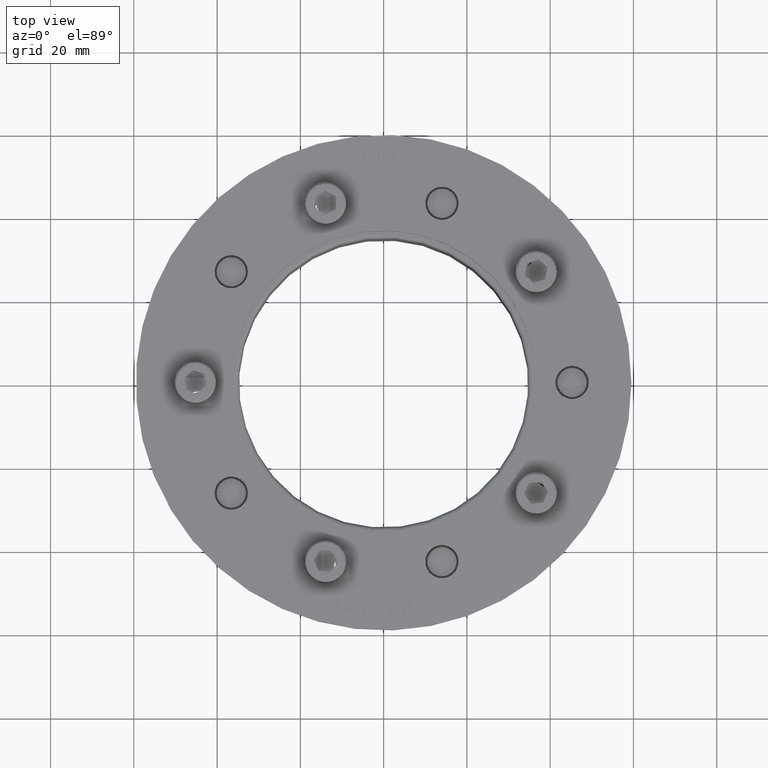
[diagram: clean part render]
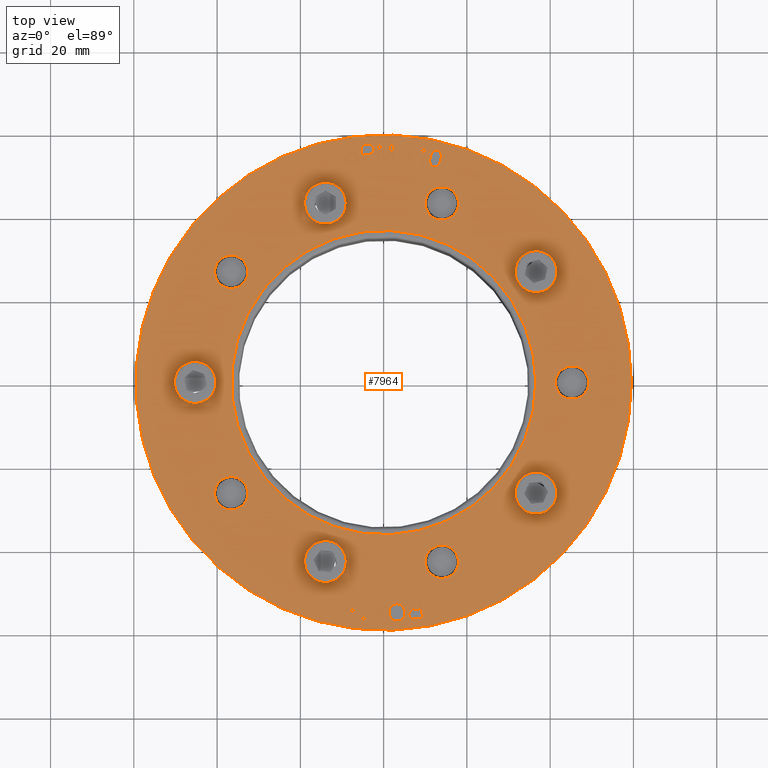
[diagram: same view with one face highlighted and labeled with its STEP entity id]
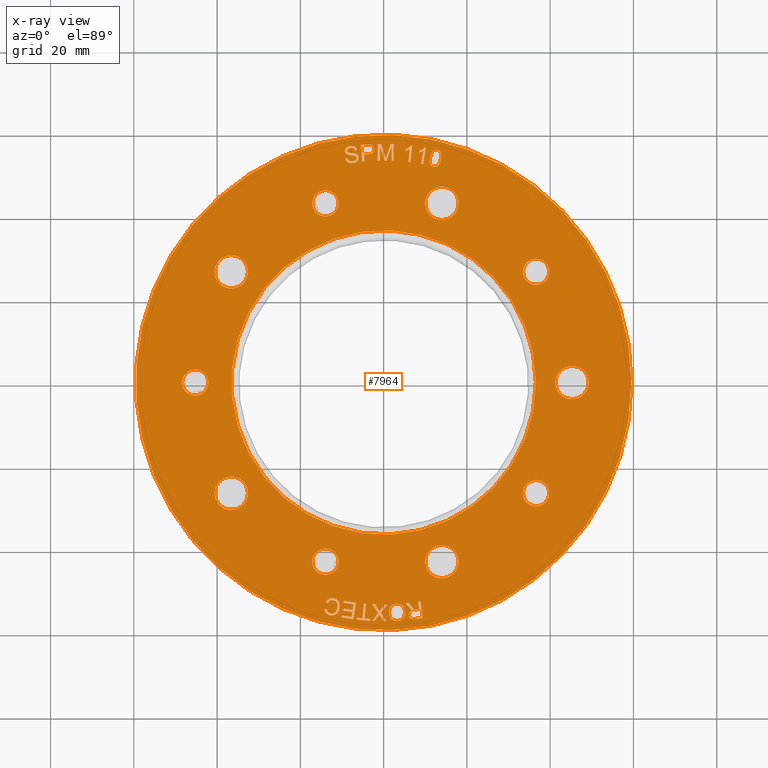
[diagram: x-ray of the same camera — body ghosted, the highlighted face saturated]
A machine part, top view. The second image highlights one B-rep face of the part: STEP entity #7964.
The next image is the same camera in x-ray: the body ghosted, the highlighted face saturated — about 0% of this face is hidden behind the body in this view.
In plain terms, the highlighted planar face has unit normal (-0, 0, 1).
Its self-contained STEP definition (entity closure, byte-faithful):
#121=FACE_BOUND('',#1734,.T.);
#122=FACE_BOUND('',#1735,.T.);
#123=FACE_BOUND('',#1736,.T.);
#124=FACE_BOUND('',#1737,.T.);
#125=FACE_BOUND('',#1738,.T.);
#126=FACE_BOUND('',#1739,.T.);
#127=FACE_BOUND('',#1740,.T.);
#128=FACE_BOUND('',#1741,.T.);
#129=FACE_BOUND('',#1742,.T.);
#130=FACE_BOUND('',#1743,.T.);
#131=FACE_BOUND('',#1744,.T.);
#132=FACE_BOUND('',#1745,.T.);
#133=FACE_BOUND('',#1746,.T.);
#134=FACE_BOUND('',#1747,.T.);
#135=FACE_BOUND('',#1748,.T.);
#136=FACE_BOUND('',#1749,.T.);
#137=FACE_BOUND('',#1750,.T.);
#138=FACE_BOUND('',#1751,.T.);
#139=FACE_BOUND('',#1752,.T.);
#140=FACE_BOUND('',#1753,.T.);
#141=FACE_BOUND('',#1754,.T.);
#142=FACE_BOUND('',#1755,.T.);
#143=FACE_BOUND('',#1756,.T.);
#448=CIRCLE('',#8577,59.5);
#449=CIRCLE('',#8578,4.);
#450=CIRCLE('',#8579,4.);
#451=CIRCLE('',#8580,4.);
#452=CIRCLE('',#8581,4.);
#453=CIRCLE('',#8582,4.);
#454=CIRCLE('',#8583,4.);
#455=CIRCLE('',#8584,4.);
#456=CIRCLE('',#8585,4.);
#457=CIRCLE('',#8586,4.);
#458=CIRCLE('',#8587,4.);
#459=CIRCLE('',#8588,3.15);
#460=CIRCLE('',#8589,3.15);
#461=CIRCLE('',#8590,3.15);
#462=CIRCLE('',#8591,3.15);
#463=CIRCLE('',#8592,3.15);
#464=CIRCLE('',#8593,3.15);
#465=CIRCLE('',#8594,3.15);
#466=CIRCLE('',#8595,3.15);
#467=CIRCLE('',#8596,3.15);
#468=CIRCLE('',#8597,3.15);
#469=CIRCLE('',#8598,36.55);
#629=B_SPLINE_CURVE_WITH_KNOTS('',2,(#12862,#12863,#12864),
 .UNSPECIFIED.,.F.,.F.,(3,3),(0.,1.),.UNSPECIFIED.);
#631=B_SPLINE_CURVE_WITH_KNOTS('',2,(#12877,#12878,#12879),
 .UNSPECIFIED.,.F.,.F.,(3,3),(0.,1.),.UNSPECIFIED.);
#633=B_SPLINE_CURVE_WITH_KNOTS('',2,(#12928,#12929,#12930),
 .UNSPECIFIED.,.F.,.F.,(3,3),(0.,1.),.UNSPECIFIED.);
#635=B_SPLINE_CURVE_WITH_KNOTS('',2,(#12943,#12944,#12945),
 .UNSPECIFIED.,.F.,.F.,(3,3),(0.,1.),.UNSPECIFIED.);
#645=B_SPLINE_CURVE_WITH_KNOTS('',2,(#13065,#13066,#13067,#13068,#13069),
 .UNSPECIFIED.,.F.,.F.,(3,1,1,3),(0.,1.,2.,3.),.UNSPECIFIED.);
#647=B_SPLINE_CURVE_WITH_KNOTS('',2,(#13090,#13091,#13092,#13093,#13094),
 .UNSPECIFIED.,.F.,.F.,(3,1,1,3),(0.,1.,2.,3.),.UNSPECIFIED.);
#649=B_SPLINE_CURVE_WITH_KNOTS('',2,(#13113,#13114,#13115,#13116,#13117),
 .UNSPECIFIED.,.F.,.F.,(3,1,1,3),(0.,1.,2.,3.),.UNSPECIFIED.);
#651=B_SPLINE_CURVE_WITH_KNOTS('',2,(#13133,#13134,#13135,#13136),
 .UNSPECIFIED.,.F.,.F.,(3,1,3),(0.,1.,2.),.UNSPECIFIED.);
#657=B_SPLINE_CURVE_WITH_KNOTS('',2,(#13230,#13231,#13232),
 .UNSPECIFIED.,.F.,.F.,(3,3),(0.,1.),.UNSPECIFIED.);
#659=B_SPLINE_CURVE_WITH_KNOTS('',2,(#13249,#13250,#13251,#13252,#13253),
 .UNSPECIFIED.,.F.,.F.,(3,1,1,3),(0.,1.,2.,3.),.UNSPECIFIED.);
#661=B_SPLINE_CURVE_WITH_KNOTS('',2,(#13286,#13287,#13288),
 .UNSPECIFIED.,.F.,.F.,(3,3),(0.,1.),.UNSPECIFIED.);
#663=B_SPLINE_CURVE_WITH_KNOTS('',2,(#13301,#13302,#13303),
 .UNSPECIFIED.,.F.,.F.,(3,3),(0.,1.),.UNSPECIFIED.);
#665=B_SPLINE_CURVE_WITH_KNOTS('',2,(#13318,#13319,#13320,#13321),
 .UNSPECIFIED.,.F.,.F.,(3,1,3),(0.,1.,2.),.UNSPECIFIED.);
#667=B_SPLINE_CURVE_WITH_KNOTS('',2,(#13339,#13340,#13341,#13342,#13343),
 .UNSPECIFIED.,.F.,.F.,(3,1,1,3),(0.,1.,2.,3.),.UNSPECIFIED.);
#679=B_SPLINE_CURVE_WITH_KNOTS('',2,(#13456,#13457,#13458),
 .UNSPECIFIED.,.F.,.F.,(3,3),(0.,1.),.UNSPECIFIED.);
#681=B_SPLINE_CURVE_WITH_KNOTS('',2,(#13473,#13474,#13475),
 .UNSPECIFIED.,.F.,.F.,(3,3),(0.,1.),.UNSPECIFIED.);
#683=B_SPLINE_CURVE_WITH_KNOTS('',2,(#13492,#13493,#13494,#13495,#13496),
 .UNSPECIFIED.,.F.,.F.,(3,1,1,3),(0.,1.,2.,3.),.UNSPECIFIED.);
#685=B_SPLINE_CURVE_WITH_KNOTS('',2,(#13517,#13518,#13519,#13520,#13521,
#13522),.UNSPECIFIED.,.F.,.F.,(3,1,1,1,3),(0.,1.,2.,3.,4.),
 .UNSPECIFIED.);
#687=B_SPLINE_CURVE_WITH_KNOTS('',2,(#13541,#13542,#13543,#13544,#13545),
 .UNSPECIFIED.,.F.,.F.,(3,1,1,3),(0.,1.,2.,3.),.UNSPECIFIED.);
#689=B_SPLINE_CURVE_WITH_KNOTS('',2,(#13576,#13577,#13578,#13579),
 .UNSPECIFIED.,.F.,.F.,(3,1,3),(0.,1.,2.),.UNSPECIFIED.);
#691=B_SPLINE_CURVE_WITH_KNOTS('',2,(#13601,#13602,#13603,#13604),
 .UNSPECIFIED.,.F.,.F.,(3,1,3),(0.,1.,2.),.UNSPECIFIED.);
#693=B_SPLINE_CURVE_WITH_KNOTS('',2,(#13633,#13634,#13635,#13636,#13637),
 .UNSPECIFIED.,.F.,.F.,(3,1,1,3),(0.,1.,2.,3.),.UNSPECIFIED.);
#695=B_SPLINE_CURVE_WITH_KNOTS('',2,(#13658,#13659,#13660,#13661,#13662),
 .UNSPECIFIED.,.F.,.F.,(3,1,1,3),(0.,1.,2.,3.),.UNSPECIFIED.);
#697=B_SPLINE_CURVE_WITH_KNOTS('',2,(#13679,#13680,#13681,#13682),
 .UNSPECIFIED.,.F.,.F.,(3,1,3),(0.,1.,2.),.UNSPECIFIED.);
#699=B_SPLINE_CURVE_WITH_KNOTS('',2,(#13698,#13699,#13700,#13701),
 .UNSPECIFIED.,.F.,.F.,(3,1,3),(0.,1.,2.),.UNSPECIFIED.);
#701=B_SPLINE_CURVE_WITH_KNOTS('',2,(#13715,#13716,#13717),
 .UNSPECIFIED.,.F.,.F.,(3,3),(0.,1.),.UNSPECIFIED.);
#703=B_SPLINE_CURVE_WITH_KNOTS('',2,(#13732,#13733,#13734,#13735),
 .UNSPECIFIED.,.F.,.F.,(3,1,3),(0.,1.,2.),.UNSPECIFIED.);
#705=B_SPLINE_CURVE_WITH_KNOTS('',2,(#13751,#13752,#13753,#13754),
 .UNSPECIFIED.,.F.,.F.,(3,1,3),(0.,1.,2.),.UNSPECIFIED.);
#707=B_SPLINE_CURVE_WITH_KNOTS('',2,(#13778,#13779,#13780,#13781,#13782),
 .UNSPECIFIED.,.F.,.F.,(3,1,1,3),(0.,1.,2.,3.),.UNSPECIFIED.);
#709=B_SPLINE_CURVE_WITH_KNOTS('',2,(#13801,#13802,#13803,#13804,#13805),
 .UNSPECIFIED.,.F.,.F.,(3,1,1,3),(0.,1.,2.,3.),.UNSPECIFIED.);
#711=B_SPLINE_CURVE_WITH_KNOTS('',2,(#13822,#13823,#13824,#13825),
 .UNSPECIFIED.,.F.,.F.,(3,1,3),(0.,1.,2.),.UNSPECIFIED.);
#713=B_SPLINE_CURVE_WITH_KNOTS('',2,(#13841,#13842,#13843,#13844),
 .UNSPECIFIED.,.F.,.F.,(3,1,3),(0.,1.,2.),.UNSPECIFIED.);
#715=B_SPLINE_CURVE_WITH_KNOTS('',2,(#13860,#13861,#13862,#13863),
 .UNSPECIFIED.,.F.,.F.,(3,1,3),(0.,1.,2.),.UNSPECIFIED.);
#717=B_SPLINE_CURVE_WITH_KNOTS('',2,(#13881,#13882,#13883,#13884,#13885),
 .UNSPECIFIED.,.F.,.F.,(3,1,1,3),(0.,1.,2.,3.),.UNSPECIFIED.);
#719=B_SPLINE_CURVE_WITH_KNOTS('',2,(#13904,#13905,#13906,#13907,#13908),
 .UNSPECIFIED.,.F.,.F.,(3,1,1,3),(0.,1.,2.,3.),.UNSPECIFIED.);
#727=B_SPLINE_CURVE_WITH_KNOTS('',2,(#14021,#14022,#14023,#14024),
 .UNSPECIFIED.,.F.,.F.,(3,1,3),(0.,1.,2.),.UNSPECIFIED.);
#729=B_SPLINE_CURVE_WITH_KNOTS('',2,(#14042,#14043,#14044,#14045,#14046),
 .UNSPECIFIED.,.F.,.F.,(3,1,1,3),(0.,1.,2.,3.),.UNSPECIFIED.);
#731=B_SPLINE_CURVE_WITH_KNOTS('',2,(#14061,#14062,#14063),
 .UNSPECIFIED.,.F.,.F.,(3,3),(0.,1.),.UNSPECIFIED.);
#733=B_SPLINE_CURVE_WITH_KNOTS('',2,(#14149,#14150,#14151),
 .UNSPECIFIED.,.F.,.F.,(3,3),(0.,1.),.UNSPECIFIED.);
#735=B_SPLINE_CURVE_WITH_KNOTS('',2,(#14164,#14165,#14166),
 .UNSPECIFIED.,.F.,.F.,(3,3),(0.,1.),.UNSPECIFIED.);
#737=B_SPLINE_CURVE_WITH_KNOTS('',2,(#14212,#14213,#14214,#14215),
 .UNSPECIFIED.,.F.,.F.,(3,1,3),(0.,1.,2.),.UNSPECIFIED.);
#739=B_SPLINE_CURVE_WITH_KNOTS('',2,(#14237,#14238,#14239,#14240),
 .UNSPECIFIED.,.F.,.F.,(3,1,3),(0.,1.,2.),.UNSPECIFIED.);
#741=B_SPLINE_CURVE_WITH_KNOTS('',2,(#14316,#14317,#14318,#14319),
 .UNSPECIFIED.,.F.,.F.,(3,1,3),(0.,1.,2.),.UNSPECIFIED.);
#743=B_SPLINE_CURVE_WITH_KNOTS('',2,(#14339,#14340,#14341,#14342,#14343),
 .UNSPECIFIED.,.F.,.F.,(3,1,1,3),(0.,1.,2.,3.),.UNSPECIFIED.);
#745=B_SPLINE_CURVE_WITH_KNOTS('',2,(#14362,#14363,#14364,#14365,#14366),
 .UNSPECIFIED.,.F.,.F.,(3,1,1,3),(0.,1.,2.,3.),.UNSPECIFIED.);
#747=B_SPLINE_CURVE_WITH_KNOTS('',2,(#14383,#14384,#14385,#14386),
 .UNSPECIFIED.,.F.,.F.,(3,1,3),(0.,1.,2.),.UNSPECIFIED.);
#749=B_SPLINE_CURVE_WITH_KNOTS('',2,(#14408,#14409,#14410,#14411),
 .UNSPECIFIED.,.F.,.F.,(3,1,3),(0.,1.,2.),.UNSPECIFIED.);
#751=B_SPLINE_CURVE_WITH_KNOTS('',2,(#14429,#14430,#14431,#14432,#14433),
 .UNSPECIFIED.,.F.,.F.,(3,1,1,3),(0.,1.,2.,3.),.UNSPECIFIED.);
#753=B_SPLINE_CURVE_WITH_KNOTS('',2,(#14452,#14453,#14454,#14455,#14456),
 .UNSPECIFIED.,.F.,.F.,(3,1,1,3),(0.,1.,2.,3.),.UNSPECIFIED.);
#755=B_SPLINE_CURVE_WITH_KNOTS('',2,(#14473,#14474,#14475,#14476),
 .UNSPECIFIED.,.F.,.F.,(3,1,3),(0.,1.,2.),.UNSPECIFIED.);
#1265=FACE_OUTER_BOUND('',#1733,.T.);
#1733=EDGE_LOOP('',(#7062));
#1734=EDGE_LOOP('',(#7063,#7064,#7065,#7066,#7067,#7068,#7069,#7070,#7071,
#7072,#7073,#7074));
#1735=EDGE_LOOP('',(#7075,#7076,#7077,#7078,#7079,#7080,#7081,#7082,#7083,
#7084,#7085,#7086,#7087,#7088,#7089,#7090));
#1736=EDGE_LOOP('',(#7091,#7092,#7093,#7094));
#1737=EDGE_LOOP('',(#7095,#7096,#7097,#7098,#7099,#7100,#7101,#7102,#7103,
#7104,#7105,#7106,#7107,#7108));
#1738=EDGE_LOOP('',(#7109,#7110,#7111,#7112,#7113));
#1739=EDGE_LOOP('',(#7114,#7115,#7116,#7117,#7118,#7119,#7120));
#1740=EDGE_LOOP('',(#7121,#7122,#7123,#7124,#7125,#7126,#7127,#7128,#7129,
#7130,#7131,#7132,#7133,#7134,#7135,#7136));
#1741=EDGE_LOOP('',(#7137,#7138,#7139,#7140,#7141,#7142,#7143,#7144));
#1742=EDGE_LOOP('',(#7145,#7146,#7147,#7148,#7149,#7150,#7151,#7152,#7153,
#7154,#7155,#7156,#7157,#7158,#7159));
#1743=EDGE_LOOP('',(#7160,#7161,#7162,#7163,#7164,#7165,#7166));
#1744=EDGE_LOOP('',(#7167,#7168,#7169,#7170,#7171,#7172,#7173,#7174));
#1745=EDGE_LOOP('',(#7175,#7176,#7177,#7178,#7179,#7180,#7181,#7182,#7183,
#7184));
#1746=EDGE_LOOP('',(#7185,#7186));
#1747=EDGE_LOOP('',(#7187,#7188));
#1748=EDGE_LOOP('',(#7189,#7190));
#1749=EDGE_LOOP('',(#7191,#7192));
#1750=EDGE_LOOP('',(#7193,#7194));
#1751=EDGE_LOOP('',(#7195,#7196));
#1752=EDGE_LOOP('',(#7197,#7198));
#1753=EDGE_LOOP('',(#7199,#7200));
#1754=EDGE_LOOP('',(#7201,#7202));
#1755=EDGE_LOOP('',(#7203,#7204));
#1756=EDGE_LOOP('',(#7205));
#2121=LINE('',#12770,#2766);
#2125=LINE('',#12778,#2770);
#2128=LINE('',#12784,#2773);
#2131=LINE('',#12790,#2776);
#2134=LINE('',#12796,#2779);
#2137=LINE('',#12802,#2782);
#2140=LINE('',#12808,#2785);
#2143=LINE('',#12814,#2788);
#2146=LINE('',#12820,#2791);
#2149=LINE('',#12826,#2794);
#2152=LINE('',#12832,#2797);
#2155=LINE('',#12837,#2800);
#2157=LINE('',#12843,#2802);
#2161=LINE('',#12851,#2806);
#2166=LINE('',#12887,#2811);
#2169=LINE('',#12893,#2814);
#2172=LINE('',#12899,#2817);
#2175=LINE('',#12905,#2820);
#2178=LINE('',#12911,#2823);
#2181=LINE('',#12917,#2826);
#2186=LINE('',#12953,#2831);
#2189=LINE('',#12959,#2834);
#2192=LINE('',#12965,#2837);
#2195=LINE('',#12970,#2840);
#2216=LINE('',#13205,#2861);
#2220=LINE('',#13213,#2865);
#2223=LINE('',#13219,#2868);
#2228=LINE('',#13263,#2873);
#2231=LINE('',#13269,#2876);
#2234=LINE('',#13275,#2879);
#2241=LINE('',#13353,#2886);
#2244=LINE('',#13358,#2889);
#2256=LINE('',#13555,#2901);
#2260=LINE('',#13563,#2905);
#2264=LINE('',#13588,#2909);
#2268=LINE('',#13613,#2913);
#2271=LINE('',#13618,#2916);
#2281=LINE('',#13763,#2926);
#2291=LINE('',#13917,#2936);
#2305=LINE('',#13994,#2950);
#2309=LINE('',#14002,#2954);
#2312=LINE('',#14008,#2957);
#2318=LINE('',#14071,#2963);
#2321=LINE('',#14076,#2966);
#2323=LINE('',#14082,#2968);
#2327=LINE('',#14090,#2972);
#2330=LINE('',#14096,#2975);
#2333=LINE('',#14102,#2978);
#2336=LINE('',#14108,#2981);
#2339=LINE('',#14114,#2984);
#2342=LINE('',#14120,#2987);
#2345=LINE('',#14126,#2990);
#2348=LINE('',#14132,#2993);
#2351=LINE('',#14138,#2996);
#2356=LINE('',#14174,#3001);
#2359=LINE('',#14180,#3004);
#2362=LINE('',#14185,#3007);
#2364=LINE('',#14191,#3009);
#2368=LINE('',#14199,#3013);
#2372=LINE('',#14224,#3017);
#2376=LINE('',#14249,#3021);
#2379=LINE('',#14254,#3024);
#2381=LINE('',#14260,#3026);
#2385=LINE('',#14268,#3030);
#2388=LINE('',#14274,#3033);
#2391=LINE('',#14280,#3036);
#2394=LINE('',#14286,#3039);
#2397=LINE('',#14292,#3042);
#2400=LINE('',#14298,#3045);
#2403=LINE('',#14303,#3048);
#2410=LINE('',#14395,#3055);
#2417=LINE('',#14484,#3062);
#2766=VECTOR('',#9745,10.);
#2770=VECTOR('',#9751,10.);
#2773=VECTOR('',#9756,10.);
#2776=VECTOR('',#9761,10.);
#2779=VECTOR('',#9766,10.);
#2782=VECTOR('',#9771,10.);
#2785=VECTOR('',#9776,10.);
#2788=VECTOR('',#9781,10.);
#2791=VECTOR('',#9786,10.);
#2794=VECTOR('',#9791,10.);
#2797=VECTOR('',#9796,10.);
#2800=VECTOR('',#9801,10.);
#2802=VECTOR('',#9807,10.);
#2806=VECTOR('',#9813,10.);
#2811=VECTOR('',#9820,10.);
#2814=VECTOR('',#9825,10.);
#2817=VECTOR('',#9830,10.);
#2820=VECTOR('',#9835,10.);
#2823=VECTOR('',#9840,10.);
#2826=VECTOR('',#9845,10.);
#2831=VECTOR('',#9852,10.);
#2834=VECTOR('',#9857,10.);
#2837=VECTOR('',#9862,10.);
#2840=VECTOR('',#9867,10.);
#2861=VECTOR('',#9900,10.);
#2865=VECTOR('',#9906,10.);
#2868=VECTOR('',#9911,10.);
#2873=VECTOR('',#9918,10.);
#2876=VECTOR('',#9923,10.);
#2879=VECTOR('',#9928,10.);
#2886=VECTOR('',#9937,10.);
#2889=VECTOR('',#9942,10.);
#2901=VECTOR('',#9960,10.);
#2905=VECTOR('',#9966,10.);
#2909=VECTOR('',#9972,10.);
#2913=VECTOR('',#9978,10.);
#2916=VECTOR('',#9983,10.);
#2926=VECTOR('',#9997,10.);
#2936=VECTOR('',#10009,10.);
#2950=VECTOR('',#10033,10.);
#2954=VECTOR('',#10039,10.);
#2957=VECTOR('',#10044,10.);
#2963=VECTOR('',#10052,10.);
#2966=VECTOR('',#10057,10.);
#2968=VECTOR('',#10063,10.);
#2972=VECTOR('',#10069,10.);
#2975=VECTOR('',#10074,10.);
#2978=VECTOR('',#10079,10.);
#2981=VECTOR('',#10084,10.);
#2984=VECTOR('',#10089,10.);
#2987=VECTOR('',#10094,10.);
#2990=VECTOR('',#10099,10.);
#2993=VECTOR('',#10104,10.);
#2996=VECTOR('',#10109,10.);
#3001=VECTOR('',#10116,10.);
#3004=VECTOR('',#10121,10.);
#3007=VECTOR('',#10126,10.);
#3009=VECTOR('',#10132,10.);
#3013=VECTOR('',#10138,10.);
#3017=VECTOR('',#10144,10.);
#3021=VECTOR('',#10150,10.);
#3024=VECTOR('',#10155,10.);
#3026=VECTOR('',#10161,10.);
#3030=VECTOR('',#10167,10.);
#3033=VECTOR('',#10172,10.);
#3036=VECTOR('',#10177,10.);
#3039=VECTOR('',#10182,10.);
#3042=VECTOR('',#10187,10.);
#3045=VECTOR('',#10192,10.);
#3048=VECTOR('',#10197,10.);
#3055=VECTOR('',#10208,10.);
#3062=VECTOR('',#10217,10.);
#3540=VERTEX_POINT('',#12768);
#3541=VERTEX_POINT('',#12769);
#3544=VERTEX_POINT('',#12777);
#3546=VERTEX_POINT('',#12783);
#3548=VERTEX_POINT('',#12789);
#3550=VERTEX_POINT('',#12795);
#3552=VERTEX_POINT('',#12801);
#3554=VERTEX_POINT('',#12807);
#3556=VERTEX_POINT('',#12813);
#3558=VERTEX_POINT('',#12819);
#3560=VERTEX_POINT('',#12825);
#3562=VERTEX_POINT('',#12831);
#3564=VERTEX_POINT('',#12841);
#3565=VERTEX_POINT('',#12842);
#3568=VERTEX_POINT('',#12850);
#3570=VERTEX_POINT('',#12861);
#3572=VERTEX_POINT('',#12876);
#3574=VERTEX_POINT('',#12886);
#3576=VERTEX_POINT('',#12892);
#3578=VERTEX_POINT('',#12898);
#3580=VERTEX_POINT('',#12904);
#3582=VERTEX_POINT('',#12910);
#3584=VERTEX_POINT('',#12916);
#3586=VERTEX_POINT('',#12927);
#3588=VERTEX_POINT('',#12942);
#3590=VERTEX_POINT('',#12952);
#3592=VERTEX_POINT('',#12958);
#3594=VERTEX_POINT('',#12964);
#3604=VERTEX_POINT('',#13063);
#3605=VERTEX_POINT('',#13064);
#3608=VERTEX_POINT('',#13089);
#3610=VERTEX_POINT('',#13112);
#3622=VERTEX_POINT('',#13203);
#3623=VERTEX_POINT('',#13204);
#3626=VERTEX_POINT('',#13212);
#3628=VERTEX_POINT('',#13218);
#3630=VERTEX_POINT('',#13229);
#3632=VERTEX_POINT('',#13248);
#3634=VERTEX_POINT('',#13262);
#3636=VERTEX_POINT('',#13268);
#3638=VERTEX_POINT('',#13274);
#3640=VERTEX_POINT('',#13285);
#3642=VERTEX_POINT('',#13300);
#3644=VERTEX_POINT('',#13317);
#3646=VERTEX_POINT('',#13338);
#3648=VERTEX_POINT('',#13352);
#3660=VERTEX_POINT('',#13454);
#3661=VERTEX_POINT('',#13455);
#3664=VERTEX_POINT('',#13472);
#3666=VERTEX_POINT('',#13491);
#3668=VERTEX_POINT('',#13516);
#3670=VERTEX_POINT('',#13553);
#3671=VERTEX_POINT('',#13554);
#3674=VERTEX_POINT('',#13562);
#3676=VERTEX_POINT('',#13575);
#3678=VERTEX_POINT('',#13587);
#3680=VERTEX_POINT('',#13600);
#3682=VERTEX_POINT('',#13612);
#3684=VERTEX_POINT('',#13631);
#3685=VERTEX_POINT('',#13632);
#3688=VERTEX_POINT('',#13657);
#3690=VERTEX_POINT('',#13678);
#3692=VERTEX_POINT('',#13697);
#3694=VERTEX_POINT('',#13714);
#3696=VERTEX_POINT('',#13731);
#3698=VERTEX_POINT('',#13750);
#3700=VERTEX_POINT('',#13762);
#3702=VERTEX_POINT('',#13777);
#3704=VERTEX_POINT('',#13800);
#3706=VERTEX_POINT('',#13821);
#3708=VERTEX_POINT('',#13840);
#3710=VERTEX_POINT('',#13859);
#3712=VERTEX_POINT('',#13880);
#3714=VERTEX_POINT('',#13903);
#3728=VERTEX_POINT('',#13992);
#3729=VERTEX_POINT('',#13993);
#3732=VERTEX_POINT('',#14001);
#3734=VERTEX_POINT('',#14007);
#3736=VERTEX_POINT('',#14020);
#3738=VERTEX_POINT('',#14041);
#3740=VERTEX_POINT('',#14060);
#3742=VERTEX_POINT('',#14070);
#3744=VERTEX_POINT('',#14080);
#3745=VERTEX_POINT('',#14081);
#3748=VERTEX_POINT('',#14089);
#3750=VERTEX_POINT('',#14095);
#3752=VERTEX_POINT('',#14101);
#3754=VERTEX_POINT('',#14107);
#3756=VERTEX_POINT('',#14113);
#3758=VERTEX_POINT('',#14119);
#3760=VERTEX_POINT('',#14125);
#3762=VERTEX_POINT('',#14131);
#3764=VERTEX_POINT('',#14137);
#3766=VERTEX_POINT('',#14148);
#3768=VERTEX_POINT('',#14163);
#3770=VERTEX_POINT('',#14173);
#3772=VERTEX_POINT('',#14179);
#3774=VERTEX_POINT('',#14189);
#3775=VERTEX_POINT('',#14190);
#3778=VERTEX_POINT('',#14198);
#3780=VERTEX_POINT('',#14211);
#3782=VERTEX_POINT('',#14223);
#3784=VERTEX_POINT('',#14236);
#3786=VERTEX_POINT('',#14248);
#3788=VERTEX_POINT('',#14258);
#3789=VERTEX_POINT('',#14259);
#3792=VERTEX_POINT('',#14267);
#3794=VERTEX_POINT('',#14273);
#3796=VERTEX_POINT('',#14279);
#3798=VERTEX_POINT('',#14285);
#3800=VERTEX_POINT('',#14291);
#3802=VERTEX_POINT('',#14297);
#3804=VERTEX_POINT('',#14314);
#3805=VERTEX_POINT('',#14315);
#3808=VERTEX_POINT('',#14338);
#3810=VERTEX_POINT('',#14361);
#3812=VERTEX_POINT('',#14382);
#3814=VERTEX_POINT('',#14394);
#3816=VERTEX_POINT('',#14407);
#3818=VERTEX_POINT('',#14428);
#3820=VERTEX_POINT('',#14451);
#3822=VERTEX_POINT('',#14472);
#3824=VERTEX_POINT('',#14488);
#3825=VERTEX_POINT('',#14490);
#3826=VERTEX_POINT('',#14491);
#3827=VERTEX_POINT('',#14494);
#3828=VERTEX_POINT('',#14495);
#3829=VERTEX_POINT('',#14498);
#3830=VERTEX_POINT('',#14499);
#3831=VERTEX_POINT('',#14502);
#3832=VERTEX_POINT('',#14503);
#3833=VERTEX_POINT('',#14506);
#3834=VERTEX_POINT('',#14507);
#3835=VERTEX_POINT('',#14510);
#3836=VERTEX_POINT('',#14511);
#3837=VERTEX_POINT('',#14514);
#3838=VERTEX_POINT('',#14515);
#3839=VERTEX_POINT('',#14518);
#3840=VERTEX_POINT('',#14519);
#3841=VERTEX_POINT('',#14522);
#3842=VERTEX_POINT('',#14523);
#3843=VERTEX_POINT('',#14526);
#3844=VERTEX_POINT('',#14527);
#3845=VERTEX_POINT('',#14530);
#4538=EDGE_CURVE('',#3540,#3541,#2121,.T.);
#4542=EDGE_CURVE('',#3544,#3540,#2125,.T.);
#4545=EDGE_CURVE('',#3546,#3544,#2128,.T.);
#4548=EDGE_CURVE('',#3548,#3546,#2131,.T.);
#4551=EDGE_CURVE('',#3550,#3548,#2134,.T.);
#4554=EDGE_CURVE('',#3552,#3550,#2137,.T.);
#4557=EDGE_CURVE('',#3554,#3552,#2140,.T.);
#4560=EDGE_CURVE('',#3556,#3554,#2143,.T.);
#4563=EDGE_CURVE('',#3558,#3556,#2146,.T.);
#4566=EDGE_CURVE('',#3560,#3558,#2149,.T.);
#4569=EDGE_CURVE('',#3562,#3560,#2152,.T.);
#4572=EDGE_CURVE('',#3541,#3562,#2155,.T.);
#4574=EDGE_CURVE('',#3564,#3565,#2157,.T.);
#4578=EDGE_CURVE('',#3568,#3564,#2161,.T.);
#4581=EDGE_CURVE('',#3570,#3568,#629,.T.);
#4584=EDGE_CURVE('',#3572,#3570,#631,.T.);
#4587=EDGE_CURVE('',#3574,#3572,#2166,.T.);
#4590=EDGE_CURVE('',#3576,#3574,#2169,.T.);
#4593=EDGE_CURVE('',#3578,#3576,#2172,.T.);
#4596=EDGE_CURVE('',#3580,#3578,#2175,.T.);
#4599=EDGE_CURVE('',#3582,#3580,#2178,.T.);
#4602=EDGE_CURVE('',#3584,#3582,#2181,.T.);
#4605=EDGE_CURVE('',#3586,#3584,#633,.T.);
#4608=EDGE_CURVE('',#3588,#3586,#635,.T.);
#4611=EDGE_CURVE('',#3590,#3588,#2186,.T.);
#4614=EDGE_CURVE('',#3592,#3590,#2189,.T.);
#4617=EDGE_CURVE('',#3594,#3592,#2192,.T.);
#4620=EDGE_CURVE('',#3565,#3594,#2195,.T.);
#4634=EDGE_CURVE('',#3604,#3605,#645,.T.);
#4638=EDGE_CURVE('',#3608,#3604,#647,.T.);
#4641=EDGE_CURVE('',#3610,#3608,#649,.T.);
#4644=EDGE_CURVE('',#3605,#3610,#651,.T.);
#4661=EDGE_CURVE('',#3622,#3623,#2216,.T.);
#4665=EDGE_CURVE('',#3626,#3622,#2220,.T.);
#4668=EDGE_CURVE('',#3628,#3626,#2223,.T.);
#4671=EDGE_CURVE('',#3630,#3628,#657,.T.);
#4674=EDGE_CURVE('',#3632,#3630,#659,.T.);
#4677=EDGE_CURVE('',#3634,#3632,#2228,.T.);
#4680=EDGE_CURVE('',#3636,#3634,#2231,.T.);
#4683=EDGE_CURVE('',#3638,#3636,#2234,.T.);
#4686=EDGE_CURVE('',#3640,#3638,#661,.T.);
#4689=EDGE_CURVE('',#3642,#3640,#663,.T.);
#4692=EDGE_CURVE('',#3644,#3642,#665,.T.);
#4695=EDGE_CURVE('',#3646,#3644,#667,.T.);
#4698=EDGE_CURVE('',#3648,#3646,#2241,.T.);
#4701=EDGE_CURVE('',#3623,#3648,#2244,.T.);
#4718=EDGE_CURVE('',#3660,#3661,#679,.T.);
#4722=EDGE_CURVE('',#3664,#3660,#681,.T.);
#4725=EDGE_CURVE('',#3666,#3664,#683,.T.);
#4728=EDGE_CURVE('',#3668,#3666,#685,.T.);
#4731=EDGE_CURVE('',#3661,#3668,#687,.T.);
#4733=EDGE_CURVE('',#3670,#3671,#2256,.T.);
#4737=EDGE_CURVE('',#3674,#3670,#2260,.T.);
#4740=EDGE_CURVE('',#3676,#3674,#689,.T.);
#4743=EDGE_CURVE('',#3678,#3676,#2264,.T.);
#4746=EDGE_CURVE('',#3680,#3678,#691,.T.);
#4749=EDGE_CURVE('',#3682,#3680,#2268,.T.);
#4752=EDGE_CURVE('',#3671,#3682,#2271,.T.);
#4754=EDGE_CURVE('',#3684,#3685,#693,.T.);
#4758=EDGE_CURVE('',#3688,#3684,#695,.T.);
#4761=EDGE_CURVE('',#3690,#3688,#697,.T.);
#4764=EDGE_CURVE('',#3692,#3690,#699,.T.);
#4767=EDGE_CURVE('',#3694,#3692,#701,.T.);
#4770=EDGE_CURVE('',#3696,#3694,#703,.T.);
#4773=EDGE_CURVE('',#3698,#3696,#705,.T.);
#4776=EDGE_CURVE('',#3700,#3698,#2281,.T.);
#4779=EDGE_CURVE('',#3702,#3700,#707,.T.);
#4782=EDGE_CURVE('',#3704,#3702,#709,.T.);
#4785=EDGE_CURVE('',#3706,#3704,#711,.T.);
#4788=EDGE_CURVE('',#3708,#3706,#713,.T.);
#4791=EDGE_CURVE('',#3710,#3708,#715,.T.);
#4794=EDGE_CURVE('',#3712,#3710,#717,.T.);
#4797=EDGE_CURVE('',#3714,#3712,#719,.T.);
#4800=EDGE_CURVE('',#3685,#3714,#2291,.T.);
#4820=EDGE_CURVE('',#3728,#3729,#2305,.T.);
#4824=EDGE_CURVE('',#3732,#3728,#2309,.T.);
#4827=EDGE_CURVE('',#3734,#3732,#2312,.T.);
#4830=EDGE_CURVE('',#3736,#3734,#727,.T.);
#4833=EDGE_CURVE('',#3738,#3736,#729,.T.);
#4836=EDGE_CURVE('',#3740,#3738,#731,.T.);
#4839=EDGE_CURVE('',#3742,#3740,#2318,.T.);
#4842=EDGE_CURVE('',#3729,#3742,#2321,.T.);
#4844=EDGE_CURVE('',#3744,#3745,#2323,.T.);
#4848=EDGE_CURVE('',#3748,#3744,#2327,.T.);
#4851=EDGE_CURVE('',#3750,#3748,#2330,.T.);
#4854=EDGE_CURVE('',#3752,#3750,#2333,.T.);
#4857=EDGE_CURVE('',#3754,#3752,#2336,.T.);
#4860=EDGE_CURVE('',#3756,#3754,#2339,.T.);
#4863=EDGE_CURVE('',#3758,#3756,#2342,.T.);
#4866=EDGE_CURVE('',#3760,#3758,#2345,.T.);
#4869=EDGE_CURVE('',#3762,#3760,#2348,.T.);
#4872=EDGE_CURVE('',#3764,#3762,#2351,.T.);
#4875=EDGE_CURVE('',#3766,#3764,#733,.T.);
#4878=EDGE_CURVE('',#3768,#3766,#735,.T.);
#4881=EDGE_CURVE('',#3770,#3768,#2356,.T.);
#4884=EDGE_CURVE('',#3772,#3770,#2359,.T.);
#4887=EDGE_CURVE('',#3745,#3772,#2362,.T.);
#4889=EDGE_CURVE('',#3774,#3775,#2364,.T.);
#4893=EDGE_CURVE('',#3778,#3774,#2368,.T.);
#4896=EDGE_CURVE('',#3780,#3778,#737,.T.);
#4899=EDGE_CURVE('',#3782,#3780,#2372,.T.);
#4902=EDGE_CURVE('',#3784,#3782,#739,.T.);
#4905=EDGE_CURVE('',#3786,#3784,#2376,.T.);
#4908=EDGE_CURVE('',#3775,#3786,#2379,.T.);
#4910=EDGE_CURVE('',#3788,#3789,#2381,.T.);
#4914=EDGE_CURVE('',#3792,#3788,#2385,.T.);
#4917=EDGE_CURVE('',#3794,#3792,#2388,.T.);
#4920=EDGE_CURVE('',#3796,#3794,#2391,.T.);
#4923=EDGE_CURVE('',#3798,#3796,#2394,.T.);
#4926=EDGE_CURVE('',#3800,#3798,#2397,.T.);
#4929=EDGE_CURVE('',#3802,#3800,#2400,.T.);
#4932=EDGE_CURVE('',#3789,#3802,#2403,.T.);
#4934=EDGE_CURVE('',#3804,#3805,#741,.T.);
#4938=EDGE_CURVE('',#3808,#3804,#743,.T.);
#4941=EDGE_CURVE('',#3810,#3808,#745,.T.);
#4944=EDGE_CURVE('',#3812,#3810,#747,.T.);
#4947=EDGE_CURVE('',#3814,#3812,#2410,.T.);
#4950=EDGE_CURVE('',#3816,#3814,#749,.T.);
#4953=EDGE_CURVE('',#3818,#3816,#751,.T.);
#4956=EDGE_CURVE('',#3820,#3818,#753,.T.);
#4959=EDGE_CURVE('',#3822,#3820,#755,.T.);
#4962=EDGE_CURVE('',#3805,#3822,#2417,.T.);
#4964=EDGE_CURVE('',#3824,#3824,#448,.T.);
#4965=EDGE_CURVE('',#3825,#3826,#449,.T.);
#4966=EDGE_CURVE('',#3826,#3825,#450,.T.);
#4967=EDGE_CURVE('',#3827,#3828,#451,.T.);
#4968=EDGE_CURVE('',#3828,#3827,#452,.T.);
#4969=EDGE_CURVE('',#3829,#3830,#453,.T.);
#4970=EDGE_CURVE('',#3830,#3829,#454,.T.);
#4971=EDGE_CURVE('',#3831,#3832,#455,.T.);
#4972=EDGE_CURVE('',#3832,#3831,#456,.T.);
#4973=EDGE_CURVE('',#3833,#3834,#457,.T.);
#4974=EDGE_CURVE('',#3834,#3833,#458,.T.);
#4975=EDGE_CURVE('',#3835,#3836,#459,.T.);
#4976=EDGE_CURVE('',#3836,#3835,#460,.T.);
#4977=EDGE_CURVE('',#3837,#3838,#461,.T.);
#4978=EDGE_CURVE('',#3838,#3837,#462,.T.);
#4979=EDGE_CURVE('',#3839,#3840,#463,.T.);
#4980=EDGE_CURVE('',#3840,#3839,#464,.T.);
#4981=EDGE_CURVE('',#3841,#3842,#465,.T.);
#4982=EDGE_CURVE('',#3842,#3841,#466,.T.);
#4983=EDGE_CURVE('',#3843,#3844,#467,.T.);
#4984=EDGE_CURVE('',#3844,#3843,#468,.T.);
#4985=EDGE_CURVE('',#3845,#3845,#469,.T.);
#7062=ORIENTED_EDGE('',*,*,#4964,.T.);
#7063=ORIENTED_EDGE('',*,*,#4538,.T.);
#7064=ORIENTED_EDGE('',*,*,#4572,.T.);
#7065=ORIENTED_EDGE('',*,*,#4569,.T.);
#7066=ORIENTED_EDGE('',*,*,#4566,.T.);
#7067=ORIENTED_EDGE('',*,*,#4563,.T.);
#7068=ORIENTED_EDGE('',*,*,#4560,.T.);
#7069=ORIENTED_EDGE('',*,*,#4557,.T.);
#7070=ORIENTED_EDGE('',*,*,#4554,.T.);
#7071=ORIENTED_EDGE('',*,*,#4551,.T.);
#7072=ORIENTED_EDGE('',*,*,#4548,.T.);
#7073=ORIENTED_EDGE('',*,*,#4545,.T.);
#7074=ORIENTED_EDGE('',*,*,#4542,.T.);
#7075=ORIENTED_EDGE('',*,*,#4574,.T.);
#7076=ORIENTED_EDGE('',*,*,#4620,.T.);
#7077=ORIENTED_EDGE('',*,*,#4617,.T.);
#7078=ORIENTED_EDGE('',*,*,#4614,.T.);
#7079=ORIENTED_EDGE('',*,*,#4611,.T.);
#7080=ORIENTED_EDGE('',*,*,#4608,.T.);
#7081=ORIENTED_EDGE('',*,*,#4605,.T.);
#7082=ORIENTED_EDGE('',*,*,#4602,.T.);
#7083=ORIENTED_EDGE('',*,*,#4599,.T.);
#7084=ORIENTED_EDGE('',*,*,#4596,.T.);
#7085=ORIENTED_EDGE('',*,*,#4593,.T.);
#7086=ORIENTED_EDGE('',*,*,#4590,.T.);
#7087=ORIENTED_EDGE('',*,*,#4587,.T.);
#7088=ORIENTED_EDGE('',*,*,#4584,.T.);
#7089=ORIENTED_EDGE('',*,*,#4581,.T.);
#7090=ORIENTED_EDGE('',*,*,#4578,.T.);
#7091=ORIENTED_EDGE('',*,*,#4634,.T.);
#7092=ORIENTED_EDGE('',*,*,#4644,.T.);
#7093=ORIENTED_EDGE('',*,*,#4641,.T.);
#7094=ORIENTED_EDGE('',*,*,#4638,.T.);
#7095=ORIENTED_EDGE('',*,*,#4661,.T.);
#7096=ORIENTED_EDGE('',*,*,#4701,.T.);
#7097=ORIENTED_EDGE('',*,*,#4698,.T.);
#7098=ORIENTED_EDGE('',*,*,#4695,.T.);
#7099=ORIENTED_EDGE('',*,*,#4692,.T.);
#7100=ORIENTED_EDGE('',*,*,#4689,.T.);
#7101=ORIENTED_EDGE('',*,*,#4686,.T.);
#7102=ORIENTED_EDGE('',*,*,#4683,.T.);
#7103=ORIENTED_EDGE('',*,*,#4680,.T.);
#7104=ORIENTED_EDGE('',*,*,#4677,.T.);
#7105=ORIENTED_EDGE('',*,*,#4674,.T.);
#7106=ORIENTED_EDGE('',*,*,#4671,.T.);
#7107=ORIENTED_EDGE('',*,*,#4668,.T.);
#7108=ORIENTED_EDGE('',*,*,#4665,.T.);
#7109=ORIENTED_EDGE('',*,*,#4718,.T.);
#7110=ORIENTED_EDGE('',*,*,#4731,.T.);
#7111=ORIENTED_EDGE('',*,*,#4728,.T.);
#7112=ORIENTED_EDGE('',*,*,#4725,.T.);
#7113=ORIENTED_EDGE('',*,*,#4722,.T.);
#7114=ORIENTED_EDGE('',*,*,#4733,.T.);
#7115=ORIENTED_EDGE('',*,*,#4752,.T.);
#7116=ORIENTED_EDGE('',*,*,#4749,.T.);
#7117=ORIENTED_EDGE('',*,*,#4746,.T.);
#7118=ORIENTED_EDGE('',*,*,#4743,.T.);
#7119=ORIENTED_EDGE('',*,*,#4740,.T.);
#7120=ORIENTED_EDGE('',*,*,#4737,.T.);
#7121=ORIENTED_EDGE('',*,*,#4754,.T.);
#7122=ORIENTED_EDGE('',*,*,#4800,.T.);
#7123=ORIENTED_EDGE('',*,*,#4797,.T.);
#7124=ORIENTED_EDGE('',*,*,#4794,.T.);
#7125=ORIENTED_EDGE('',*,*,#4791,.T.);
#7126=ORIENTED_EDGE('',*,*,#4788,.T.);
#7127=ORIENTED_EDGE('',*,*,#4785,.T.);
#7128=ORIENTED_EDGE('',*,*,#4782,.T.);
#7129=ORIENTED_EDGE('',*,*,#4779,.T.);
#7130=ORIENTED_EDGE('',*,*,#4776,.T.);
#7131=ORIENTED_EDGE('',*,*,#4773,.T.);
#7132=ORIENTED_EDGE('',*,*,#4770,.T.);
#7133=ORIENTED_EDGE('',*,*,#4767,.T.);
#7134=ORIENTED_EDGE('',*,*,#4764,.T.);
#7135=ORIENTED_EDGE('',*,*,#4761,.T.);
#7136=ORIENTED_EDGE('',*,*,#4758,.T.);
#7137=ORIENTED_EDGE('',*,*,#4820,.T.);
#7138=ORIENTED_EDGE('',*,*,#4842,.T.);
#7139=ORIENTED_EDGE('',*,*,#4839,.T.);
#7140=ORIENTED_EDGE('',*,*,#4836,.T.);
#7141=ORIENTED_EDGE('',*,*,#4833,.T.);
#7142=ORIENTED_EDGE('',*,*,#4830,.T.);
#7143=ORIENTED_EDGE('',*,*,#4827,.T.);
#7144=ORIENTED_EDGE('',*,*,#4824,.T.);
#7145=ORIENTED_EDGE('',*,*,#4844,.T.);
#7146=ORIENTED_EDGE('',*,*,#4887,.T.);
#7147=ORIENTED_EDGE('',*,*,#4884,.T.);
#7148=ORIENTED_EDGE('',*,*,#4881,.T.);
#7149=ORIENTED_EDGE('',*,*,#4878,.T.);
#7150=ORIENTED_EDGE('',*,*,#4875,.T.);
#7151=ORIENTED_EDGE('',*,*,#4872,.T.);
#7152=ORIENTED_EDGE('',*,*,#4869,.T.);
#7153=ORIENTED_EDGE('',*,*,#4866,.T.);
#7154=ORIENTED_EDGE('',*,*,#4863,.T.);
#7155=ORIENTED_EDGE('',*,*,#4860,.T.);
#7156=ORIENTED_EDGE('',*,*,#4857,.T.);
#7157=ORIENTED_EDGE('',*,*,#4854,.T.);
#7158=ORIENTED_EDGE('',*,*,#4851,.T.);
#7159=ORIENTED_EDGE('',*,*,#4848,.T.);
#7160=ORIENTED_EDGE('',*,*,#4889,.T.);
#7161=ORIENTED_EDGE('',*,*,#4908,.T.);
#7162=ORIENTED_EDGE('',*,*,#4905,.T.);
#7163=ORIENTED_EDGE('',*,*,#4902,.T.);
#7164=ORIENTED_EDGE('',*,*,#4899,.T.);
#7165=ORIENTED_EDGE('',*,*,#4896,.T.);
#7166=ORIENTED_EDGE('',*,*,#4893,.T.);
#7167=ORIENTED_EDGE('',*,*,#4910,.T.);
#7168=ORIENTED_EDGE('',*,*,#4932,.T.);
#7169=ORIENTED_EDGE('',*,*,#4929,.T.);
#7170=ORIENTED_EDGE('',*,*,#4926,.T.);
#7171=ORIENTED_EDGE('',*,*,#4923,.T.);
#7172=ORIENTED_EDGE('',*,*,#4920,.T.);
#7173=ORIENTED_EDGE('',*,*,#4917,.T.);
#7174=ORIENTED_EDGE('',*,*,#4914,.T.);
#7175=ORIENTED_EDGE('',*,*,#4934,.T.);
#7176=ORIENTED_EDGE('',*,*,#4962,.T.);
#7177=ORIENTED_EDGE('',*,*,#4959,.T.);
#7178=ORIENTED_EDGE('',*,*,#4956,.T.);
#7179=ORIENTED_EDGE('',*,*,#4953,.T.);
#7180=ORIENTED_EDGE('',*,*,#4950,.T.);
#7181=ORIENTED_EDGE('',*,*,#4947,.T.);
#7182=ORIENTED_EDGE('',*,*,#4944,.T.);
#7183=ORIENTED_EDGE('',*,*,#4941,.T.);
#7184=ORIENTED_EDGE('',*,*,#4938,.T.);
#7185=ORIENTED_EDGE('',*,*,#4965,.T.);
#7186=ORIENTED_EDGE('',*,*,#4966,.T.);
#7187=ORIENTED_EDGE('',*,*,#4967,.T.);
#7188=ORIENTED_EDGE('',*,*,#4968,.T.);
#7189=ORIENTED_EDGE('',*,*,#4969,.T.);
#7190=ORIENTED_EDGE('',*,*,#4970,.T.);
#7191=ORIENTED_EDGE('',*,*,#4971,.T.);
#7192=ORIENTED_EDGE('',*,*,#4972,.T.);
#7193=ORIENTED_EDGE('',*,*,#4973,.T.);
#7194=ORIENTED_EDGE('',*,*,#4974,.T.);
#7195=ORIENTED_EDGE('',*,*,#4975,.T.);
#7196=ORIENTED_EDGE('',*,*,#4976,.T.);
#7197=ORIENTED_EDGE('',*,*,#4977,.T.);
#7198=ORIENTED_EDGE('',*,*,#4978,.T.);
#7199=ORIENTED_EDGE('',*,*,#4979,.T.);
#7200=ORIENTED_EDGE('',*,*,#4980,.T.);
#7201=ORIENTED_EDGE('',*,*,#4981,.T.);
#7202=ORIENTED_EDGE('',*,*,#4982,.T.);
#7203=ORIENTED_EDGE('',*,*,#4983,.T.);
#7204=ORIENTED_EDGE('',*,*,#4984,.T.);
#7205=ORIENTED_EDGE('',*,*,#4985,.T.);
#7565=PLANE('',#8576);
#7964=ADVANCED_FACE('',(#1265,#121,#122,#123,#124,#125,#126,#127,#128,#129,
#130,#131,#132,#133,#134,#135,#136,#137,#138,#139,#140,#141,#142,#143),
#7565,.T.);
#8576=AXIS2_PLACEMENT_3D('',#14487,#10221,#10222);
#8577=AXIS2_PLACEMENT_3D('',#14489,#10223,#10224);
#8578=AXIS2_PLACEMENT_3D('',#14492,#10225,#10226);
#8579=AXIS2_PLACEMENT_3D('',#14493,#10227,#10228);
#8580=AXIS2_PLACEMENT_3D('',#14496,#10229,#10230);
#8581=AXIS2_PLACEMENT_3D('',#14497,#10231,#10232);
#8582=AXIS2_PLACEMENT_3D('',#14500,#10233,#10234);
#8583=AXIS2_PLACEMENT_3D('',#14501,#10235,#10236);
#8584=AXIS2_PLACEMENT_3D('',#14504,#10237,#10238);
#8585=AXIS2_PLACEMENT_3D('',#14505,#10239,#10240);
#8586=AXIS2_PLACEMENT_3D('',#14508,#10241,#10242);
#8587=AXIS2_PLACEMENT_3D('',#14509,#10243,#10244);
#8588=AXIS2_PLACEMENT_3D('',#14512,#10245,#10246);
#8589=AXIS2_PLACEMENT_3D('',#14513,#10247,#10248);
#8590=AXIS2_PLACEMENT_3D('',#14516,#10249,#10250);
#8591=AXIS2_PLACEMENT_3D('',#14517,#10251,#10252);
#8592=AXIS2_PLACEMENT_3D('',#14520,#10253,#10254);
#8593=AXIS2_PLACEMENT_3D('',#14521,#10255,#10256);
#8594=AXIS2_PLACEMENT_3D('',#14524,#10257,#10258);
#8595=AXIS2_PLACEMENT_3D('',#14525,#10259,#10260);
#8596=AXIS2_PLACEMENT_3D('',#14528,#10261,#10262);
#8597=AXIS2_PLACEMENT_3D('',#14529,#10263,#10264);
#8598=AXIS2_PLACEMENT_3D('',#14531,#10265,#10266);
#9745=DIRECTION('',(-0.988527590708572,0.,-0.151040399919712));
#9751=DIRECTION('',(-0.151040399919716,0.,0.988527590708571));
#9756=DIRECTION('',(0.988527590708572,0.,0.151040399919712));
#9761=DIRECTION('',(-0.15104039991971,0.,0.988527590708572));
#9766=DIRECTION('',(-0.988527590708572,0.,-0.151040399919711));
#9771=DIRECTION('',(-0.151040399919711,0.,0.988527590708572));
#9776=DIRECTION('',(0.988527590708572,0.,0.151040399919712));
#9781=DIRECTION('',(-0.151040399919711,0.,0.988527590708572));
#9786=DIRECTION('',(-0.988527590708572,0.,-0.15104039991971));
#9791=DIRECTION('',(-0.151040399919707,0.,0.988527590708573));
#9796=DIRECTION('',(0.988527590708572,0.,0.151040399919711));
#9801=DIRECTION('',(0.151040399919713,0.,-0.988527590708572));
#9807=DIRECTION('',(-0.999844232772006,0.,-0.0176496513438493));
#9813=DIRECTION('',(-0.603603575436822,0.,0.797284593931103));
#9820=DIRECTION('',(-0.564112027922139,0.,-0.825698262050716));
#9825=DIRECTION('',(-0.999844232772006,0.,-0.0176496513438397));
#9830=DIRECTION('',(0.566445570390995,0.,0.824099154097625));
#9835=DIRECTION('',(-0.603341434927185,0.,0.797482985962714));
#9840=DIRECTION('',(0.999844232772006,0.,0.0176496513438419));
#9845=DIRECTION('',(0.614387921971055,0.,-0.789004107299885));
#9852=DIRECTION('',(0.566785543803239,0.,0.823865369666468));
#9857=DIRECTION('',(0.999844232772006,0.,0.0176496513438391));
#9862=DIRECTION('',(-0.562944059023744,0.,-0.826495000837797));
#9867=DIRECTION('',(0.611790511252311,0.,-0.791019829297367));
#9900=DIRECTION('',(-0.990673228001331,0.,0.136259147661441));
#9906=DIRECTION('',(0.136259147661447,0.,0.99067322800133));
#9911=DIRECTION('',(-0.990673228001331,0.,0.136259147661445));
#9918=DIRECTION('',(-0.647366640349483,0.,-0.762178740823058));
#9923=DIRECTION('',(-0.990673228001331,0.,0.136259147661442));
#9928=DIRECTION('',(0.646548210891387,0.,0.762873129028114));
#9937=DIRECTION('',(0.99067322800133,0.,-0.136259147661447));
#9942=DIRECTION('',(-0.136259147661447,0.,-0.990673228001331));
#9960=DIRECTION('',(0.110633069793771,0.,-0.993861320239402));
#9966=DIRECTION('',(-0.993861320239401,0.,-0.11063306979378));
#9972=DIRECTION('',(-0.110633069793772,0.,0.993861320239401));
#9978=DIRECTION('',(-0.110633069793771,0.,0.993861320239402));
#9983=DIRECTION('',(0.993861320239402,0.,0.110633069793769));
#9997=DIRECTION('',(0.976391852423073,0.,-0.21600682980369));
#10009=DIRECTION('',(-0.974854636297701,0.,0.222841733274712));
#10033=DIRECTION('',(0.997576004925054,0.,-0.0695853030299332));
#10039=DIRECTION('',(-0.0695853030299211,0.,-0.997576004925055));
#10044=DIRECTION('',(0.997576004925055,0.,-0.0695853030299212));
#10052=DIRECTION('',(-0.997576004925055,0.,0.069585303029925));
#10057=DIRECTION('',(0.0695853030299208,0.,0.997576004925055));
#10063=DIRECTION('',(0.999959797095307,0.,0.00896683852381009));
#10069=DIRECTION('',(0.00896683852381109,0.,-0.999959797095307));
#10074=DIRECTION('',(0.3135678715598,0.,0.949565790203847));
#10079=DIRECTION('',(0.999959797095307,0.,0.00896683852380965));
#10084=DIRECTION('',(0.337807632696868,0.,-0.941215173747076));
#10089=DIRECTION('',(-0.0089668385238111,0.,0.999959797095307));
#10094=DIRECTION('',(0.999959797095307,0.,0.00896683852381009));
#10099=DIRECTION('',(0.00896683852381113,0.,-0.999959797095307));
#10104=DIRECTION('',(-0.999959797095307,0.,-0.00896683852381189));
#10109=DIRECTION('',(-0.334613625771128,0.,0.942355411428352));
#10116=DIRECTION('',(-0.308936614933823,0.,-0.951082629403582));
#10121=DIRECTION('',(-0.999959797095307,0.,-0.00896683852381136));
#10126=DIRECTION('',(-0.00896683852381106,0.,0.999959797095307));
#10132=DIRECTION('',(0.168325522151422,0.,-0.985731463732619));
#10138=DIRECTION('',(-0.985731463732619,0.,-0.168325522151419));
#10144=DIRECTION('',(-0.168325522151424,0.,0.985731463732618));
#10150=DIRECTION('',(-0.168325522151423,0.,0.985731463732619));
#10155=DIRECTION('',(0.985731463732621,0.,0.168325522151409));
#10161=DIRECTION('',(-0.996420543773701,0.,-0.084534607976394));
#10167=DIRECTION('',(-0.0845346079763981,0.,0.9964205437737));
#10172=DIRECTION('',(-0.9964205437737,0.,-0.0845346079763989));
#10177=DIRECTION('',(-0.0845346079763937,0.,0.996420543773701));
#10182=DIRECTION('',(0.9964205437737,0.,0.0845346079763994));
#10187=DIRECTION('',(0.084534607976396,0.,-0.996420543773701));
#10192=DIRECTION('',(-0.9964205437737,0.,-0.0845346079764019));
#10197=DIRECTION('',(0.0845346079763982,0.,-0.9964205437737));
#10208=DIRECTION('',(-0.999940696089173,0.,0.0108905603483036));
#10217=DIRECTION('',(0.890608724858615,0.,0.454770380748034));
#10221=DIRECTION('center_axis',(0.,1.,0.));
#10222=DIRECTION('ref_axis',(0.,0.,1.));
#10223=DIRECTION('center_axis',(0.,1.,0.));
#10224=DIRECTION('ref_axis',(1.,0.,0.));
#10225=DIRECTION('center_axis',(0.,-1.,0.));
#10226=DIRECTION('ref_axis',(1.,0.,0.));
#10227=DIRECTION('center_axis',(0.,-1.,0.));
#10228=DIRECTION('ref_axis',(1.,0.,0.));
#10229=DIRECTION('center_axis',(0.,-1.,0.));
#10230=DIRECTION('ref_axis',(1.,0.,0.));
#10231=DIRECTION('center_axis',(0.,-1.,0.));
#10232=DIRECTION('ref_axis',(1.,0.,0.));
#10233=DIRECTION('center_axis',(0.,-1.,0.));
#10234=DIRECTION('ref_axis',(1.,0.,0.));
#10235=DIRECTION('center_axis',(0.,-1.,0.));
#10236=DIRECTION('ref_axis',(1.,0.,0.));
#10237=DIRECTION('center_axis',(0.,-1.,0.));
#10238=DIRECTION('ref_axis',(1.,0.,0.));
#10239=DIRECTION('center_axis',(0.,-1.,0.));
#10240=DIRECTION('ref_axis',(1.,0.,0.));
#10241=DIRECTION('center_axis',(0.,-1.,0.));
#10242=DIRECTION('ref_axis',(1.,0.,0.));
#10243=DIRECTION('center_axis',(0.,-1.,0.));
#10244=DIRECTION('ref_axis',(1.,0.,0.));
#10245=DIRECTION('center_axis',(0.,-1.,0.));
#10246=DIRECTION('ref_axis',(1.,0.,0.));
#10247=DIRECTION('center_axis',(0.,-1.,0.));
#10248=DIRECTION('ref_axis',(1.,0.,0.));
#10249=DIRECTION('center_axis',(0.,-1.,0.));
#10250=DIRECTION('ref_axis',(1.,0.,0.));
#10251=DIRECTION('center_axis',(0.,-1.,0.));
#10252=DIRECTION('ref_axis',(1.,0.,0.));
#10253=DIRECTION('center_axis',(0.,-1.,0.));
#10254=DIRECTION('ref_axis',(1.,0.,0.));
#10255=DIRECTION('center_axis',(0.,-1.,0.));
#10256=DIRECTION('ref_axis',(1.,0.,0.));
#10257=DIRECTION('center_axis',(0.,-1.,0.));
#10258=DIRECTION('ref_axis',(1.,0.,0.));
#10259=DIRECTION('center_axis',(0.,-1.,0.));
#10260=DIRECTION('ref_axis',(1.,0.,0.));
#10261=DIRECTION('center_axis',(0.,-1.,0.));
#10262=DIRECTION('ref_axis',(1.,0.,0.));
#10263=DIRECTION('center_axis',(0.,-1.,0.));
#10264=DIRECTION('ref_axis',(1.,0.,0.));
#10265=DIRECTION('center_axis',(0.,-1.,0.));
#10266=DIRECTION('ref_axis',(1.,0.,0.));
#12768=CARTESIAN_POINT('',(9.59804152029619,3.,-52.4520594646857));
#12769=CARTESIAN_POINT('',(6.64451391868032,3.,-52.9033387150728));
#12770=CARTESIAN_POINT('',(8.82424741800843,3.,-52.5702900247263));
#12777=CARTESIAN_POINT('',(9.66941732010232,3.,-52.919199034329));
#12778=CARTESIAN_POINT('',(5.60850276233882,3.,-26.3413689571239));
#12783=CARTESIAN_POINT('',(7.24029155795702,3.,-53.2903531933209));
#12784=CARTESIAN_POINT('',(7.6810603367419,3.,-53.2230066738655));
#12789=CARTESIAN_POINT('',(7.44566966578627,3.,-54.6345096324236));
#12790=CARTESIAN_POINT('',(3.2820660541083,3.,-27.3846013356671));
#12795=CARTESIAN_POINT('',(9.63670493759723,3.,-54.2997341068813));
#12796=CARTESIAN_POINT('',(8.98195608047661,3.,-54.3997753501971));
#12801=CARTESIAN_POINT('',(9.70808073740335,3.,-54.7668736765246));
#12802=CARTESIAN_POINT('',(5.50878922582229,3.,-27.2833955949465));
#12807=CARTESIAN_POINT('',(7.5170454655924,3.,-55.1016492020669));
#12808=CARTESIAN_POINT('',(7.95781424437727,3.,-55.0343026826116));
#12813=CARTESIAN_POINT('',(7.70170156702632,3.,-56.3101844757893));
#12814=CARTESIAN_POINT('',(3.41008200472831,3.,-28.22243875735));
#12819=CARTESIAN_POINT('',(10.0404132189181,3.,-55.9528449877277));
#12820=CARTESIAN_POINT('',(9.31182617175701,3.,-56.0641682123032));
#12825=CARTESIAN_POINT('',(10.1117890187242,3.,-56.419984557371));
#12826=CARTESIAN_POINT('',(5.78448155652324,3.,-28.09866905411));
#12831=CARTESIAN_POINT('',(7.24867552736188,3.,-56.8574491368279));
#12832=CARTESIAN_POINT('',(7.95164522588201,3.,-56.750040071675));
#12837=CARTESIAN_POINT('',(2.61928726081998,3.,-26.5590784226894));
#12841=CARTESIAN_POINT('',(-0.261830138046421,3.,-53.3129256172875));
#12842=CARTESIAN_POINT('',(-0.898926015373271,3.,-53.3241718891955));
#12843=CARTESIAN_POINT('',(0.339448139290376,3.,-53.3023116120177));
#12850=CARTESIAN_POINT('',(0.77469084277015,3.,-54.6820397891069));
#12851=CARTESIAN_POINT('',(-12.524130705235,3.,-37.1159650189396));
#12861=CARTESIAN_POINT('',(0.968743923887942,3.,-54.9652443039893));
#12862=CARTESIAN_POINT('Ctrl Pts',(0.968743923887942,3.,-54.9652443039893));
#12863=CARTESIAN_POINT('Ctrl Pts',(0.834061517462622,3.,-54.7633216528465));
#12864=CARTESIAN_POINT('Ctrl Pts',(0.77469084277015,3.,-54.6820397891069));
#12876=CARTESIAN_POINT('',(1.13204213072252,3.,-54.7153720024658));
#12877=CARTESIAN_POINT('Ctrl Pts',(1.13204213072252,3.,-54.7153720024658));
#12878=CARTESIAN_POINT('Ctrl Pts',(1.04884196953194,3.,-54.8388109053677));
#12879=CARTESIAN_POINT('Ctrl Pts',(0.968743923887942,3.,-54.9652443039893));
#12886=CARTESIAN_POINT('',(2.11889656143812,3.,-53.2709000748944));
#12887=CARTESIAN_POINT('',(14.1881846906574,3.,-35.6049228589979));
#12892=CARTESIAN_POINT('',(2.76818566129755,3.,-53.2594385633326));
#12893=CARTESIAN_POINT('',(1.8544560389621,3.,-53.2755680850402));
#12898=CARTESIAN_POINT('',(1.30848881586804,3.,-55.3830935064317));
#12899=CARTESIAN_POINT('',(14.0251841721042,3.,-36.8820786979699));
#12904=CARTESIAN_POINT('',(2.72904526493178,3.,-57.2607527108997));
#12905=CARTESIAN_POINT('',(-11.5433047269178,3.,-38.3958851097232));
#12910=CARTESIAN_POINT('',(2.15291550026779,3.,-57.270922784539));
#12911=CARTESIAN_POINT('',(1.58212026166097,3.,-57.2809986909851));
#12916=CARTESIAN_POINT('',(1.33547976459538,3.,-56.2211623158922));
#12917=CARTESIAN_POINT('',(-12.5433070443991,3.,-38.3978630532612));
#12927=CARTESIAN_POINT('',(1.00744380592693,3.,-55.7756631230978));
#12928=CARTESIAN_POINT('Ctrl Pts',(1.00744380592693,3.,-55.7756631230978));
#12929=CARTESIAN_POINT('Ctrl Pts',(1.1453359477257,3.,-55.9866768812267));
#12930=CARTESIAN_POINT('Ctrl Pts',(1.33547976459538,3.,-56.2211623158922));
#12942=CARTESIAN_POINT('',(0.696035110510048,3.,-56.2720903709445));
#12943=CARTESIAN_POINT('Ctrl Pts',(0.696035110510048,3.,-56.2720903709445));
#12944=CARTESIAN_POINT('Ctrl Pts',(0.919061801998467,3.,-55.95103084159));
#12945=CARTESIAN_POINT('Ctrl Pts',(1.00744380592693,3.,-55.7756631230978));
#12952=CARTESIAN_POINT('',(-0.0174781105299006,3.,-57.3092354429051));
#12953=CARTESIAN_POINT('',(13.3657457646624,3.,-37.8557140787609));
#12958=CARTESIAN_POINT('',(-0.645429070957322,3.,-57.3203202850728));
#12959=CARTESIAN_POINT('',(0.182947976048332,3.,-57.3056974412521));
#12964=CARTESIAN_POINT('',(0.683155681766282,3.,-55.3697380936208));
#12965=CARTESIAN_POINT('',(13.4558591042784,3.,-36.6172966091202));
#12970=CARTESIAN_POINT('',(-13.6335054715549,3.,-36.8588873149335));
#13063=CARTESIAN_POINT('',(-3.07756345454614,3.,-53.1438919407352));
#13064=CARTESIAN_POINT('',(-5.1059383481975,3.,-55.0446095477833));
#13065=CARTESIAN_POINT('Ctrl Pts',(-3.07756345454614,3.,-53.1438919407352));
#13066=CARTESIAN_POINT('Ctrl Pts',(-3.64368063355236,3.,-53.1109779591872));
#13067=CARTESIAN_POINT('Ctrl Pts',(-4.5640990150949,3.,-53.6041182410694));
#13068=CARTESIAN_POINT('Ctrl Pts',(-5.07532480622003,3.,-54.5180596984926));
#13069=CARTESIAN_POINT('Ctrl Pts',(-5.1059383481975,3.,-55.0446095477833));
#13089=CARTESIAN_POINT('',(-1.28882356362983,3.,-55.3123450559977));
#13090=CARTESIAN_POINT('Ctrl Pts',(-1.28882356362983,3.,-55.3123450559977));
#13091=CARTESIAN_POINT('Ctrl Pts',(-1.25360914251125,3.,-54.7066605472759));
#13092=CARTESIAN_POINT('Ctrl Pts',(-1.68789388247024,3.,-53.7194236525652));
#13093=CARTESIAN_POINT('Ctrl Pts',(-2.56014452749745,3.,-53.1739746120425));
#13094=CARTESIAN_POINT('Ctrl Pts',(-3.07756345454614,3.,-53.1438919407352));
#13112=CARTESIAN_POINT('',(-3.31769395433471,3.,-57.2741124348827));
#13113=CARTESIAN_POINT('Ctrl Pts',(-3.31769395433471,3.,-57.2741124348827));
#13114=CARTESIAN_POINT('Ctrl Pts',(-2.76375133831787,3.,-57.3063185888706));
#13115=CARTESIAN_POINT('Ctrl Pts',(-1.84421774122554,3.,-56.8283965107251));
#13116=CARTESIAN_POINT('Ctrl Pts',(-1.32368407096834,3.,-55.9119422832247));
#13117=CARTESIAN_POINT('Ctrl Pts',(-1.28882356362983,3.,-55.3123450559977));
#13133=CARTESIAN_POINT('Ctrl Pts',(-5.1059383481975,3.,-55.0446095477833));
#13134=CARTESIAN_POINT('Ctrl Pts',(-5.16380325124161,3.,-56.0398800721652));
#13135=CARTESIAN_POINT('Ctrl Pts',(-4.16078244134935,3.,-57.2250953763408));
#13136=CARTESIAN_POINT('Ctrl Pts',(-3.31769395433471,3.,-57.2741124348827));
#13203=CARTESIAN_POINT('',(-8.30161131960328,3.,-52.6599771174034));
#13204=CARTESIAN_POINT('',(-8.82715139350832,3.,-52.5876933001888));
#13205=CARTESIAN_POINT('',(-7.78211194497903,3.,-52.7314300849372));
#13212=CARTESIAN_POINT('',(-8.54380364969584,3.,-54.4208383995105));
#13213=CARTESIAN_POINT('',(-4.791401199472,3.,-27.1389662322215));
#13218=CARTESIAN_POINT('',(-7.93671425397796,3.,-54.5043386711205));
#13219=CARTESIAN_POINT('',(-7.72075957721276,3.,-54.5340415028492));
#13229=CARTESIAN_POINT('',(-7.64124821908097,3.,-54.5265127505824));
#13230=CARTESIAN_POINT('Ctrl Pts',(-7.64124821908097,3.,-54.5265127505824));
#13231=CARTESIAN_POINT('Ctrl Pts',(-7.734351122072,3.,-54.5321720949905));
#13232=CARTESIAN_POINT('Ctrl Pts',(-7.93671425397796,3.,-54.5043386711205));
#13248=CARTESIAN_POINT('',(-6.63301843739416,3.,-53.7296316710395));
#13249=CARTESIAN_POINT('Ctrl Pts',(-6.63301843739416,3.,-53.7296316710395));
#13250=CARTESIAN_POINT('Ctrl Pts',(-6.9115847365212,3.,-54.0544601688124));
#13251=CARTESIAN_POINT('Ctrl Pts',(-7.2595066008575,3.,-54.3912917501406));
#13252=CARTESIAN_POINT('Ctrl Pts',(-7.5162801666192,3.,-54.5129262675338));
#13253=CARTESIAN_POINT('Ctrl Pts',(-7.64124821908097,3.,-54.5265127505824));
#13262=CARTESIAN_POINT('',(-5.99406754682486,3.,-52.9773612343686));
#13263=CARTESIAN_POINT('',(8.3316958770841,3.,-36.1108876671341));
#13268=CARTESIAN_POINT('',(-5.33865262706973,3.,-53.0675082937684));
#13269=CARTESIAN_POINT('',(-6.3006325987123,3.,-52.9351956731197));
#13274=CARTESIAN_POINT('',(-6.1725774519091,3.,-54.051470247081));
#13275=CARTESIAN_POINT('',(8.4475855000219,3.,-36.8008936154272));
#13285=CARTESIAN_POINT('',(-6.68020640969576,3.,-54.5202095761297));
#13286=CARTESIAN_POINT('Ctrl Pts',(-6.68020640969576,3.,-54.5202095761297));
#13287=CARTESIAN_POINT('Ctrl Pts',(-6.42158047393826,3.,-54.3403576504685));
#13288=CARTESIAN_POINT('Ctrl Pts',(-6.1725774519091,3.,-54.051470247081));
#13300=CARTESIAN_POINT('',(-7.0213248913341,3.,-54.673327896897));
#13301=CARTESIAN_POINT('Ctrl Pts',(-7.0213248913341,3.,-54.673327896897));
#13302=CARTESIAN_POINT('Ctrl Pts',(-6.80223241435925,3.,-54.601905351677));
#13303=CARTESIAN_POINT('Ctrl Pts',(-6.68020640969576,3.,-54.5202095761297));
#13317=CARTESIAN_POINT('',(-6.05512394578611,3.,-55.9048826953814));
#13318=CARTESIAN_POINT('Ctrl Pts',(-6.05512394578611,3.,-55.9048826953814));
#13319=CARTESIAN_POINT('Ctrl Pts',(-5.99696455262495,3.,-55.4820343600555));
#13320=CARTESIAN_POINT('Ctrl Pts',(-6.46430101405498,3.,-54.8299566299882));
#13321=CARTESIAN_POINT('Ctrl Pts',(-7.0213248913341,3.,-54.673327896897));
#13338=CARTESIAN_POINT('',(-7.61434705542102,3.,-56.7921631770986));
#13339=CARTESIAN_POINT('Ctrl Pts',(-7.61434705542102,3.,-56.7921631770986));
#13340=CARTESIAN_POINT('Ctrl Pts',(-7.08578663626366,3.,-56.86486241855));
#13341=CARTESIAN_POINT('Ctrl Pts',(-6.50356833427022,3.,-56.7264405409811));
#13342=CARTESIAN_POINT('Ctrl Pts',(-6.09998976336758,3.,-56.2310799826328));
#13343=CARTESIAN_POINT('Ctrl Pts',(-6.05512394578611,3.,-55.9048826953814));
#13352=CARTESIAN_POINT('',(-9.37218799227578,3.,-56.5503862712429));
#13353=CARTESIAN_POINT('',(-8.58991858069919,3.,-56.6579811473839));
#13358=CARTESIAN_POINT('',(-5.19584510833076,3.,-26.1862517739534));
#13454=CARTESIAN_POINT('',(-11.1924890215533,3.,52.4720694067038));
#13455=CARTESIAN_POINT('',(-11.1733892073443,3.,54.1475587883594));
#13456=CARTESIAN_POINT('Ctrl Pts',(-11.1924890215533,3.,52.4720694067038));
#13457=CARTESIAN_POINT('Ctrl Pts',(-10.9197617884306,3.,53.0515213026438));
#13458=CARTESIAN_POINT('Ctrl Pts',(-11.1733892073443,3.,54.1475587883594));
#13472=CARTESIAN_POINT('',(-11.9848453066207,3.,51.8662536034304));
#13473=CARTESIAN_POINT('Ctrl Pts',(-11.9848453066207,3.,51.8662536034304));
#13474=CARTESIAN_POINT('Ctrl Pts',(-11.4204899616723,3.,51.9968476673697));
#13475=CARTESIAN_POINT('Ctrl Pts',(-11.1924890215533,3.,52.4720694067038));
#13491=CARTESIAN_POINT('',(-13.7129882596121,3.,53.5598855006325));
#13492=CARTESIAN_POINT('Ctrl Pts',(-13.7129882596121,3.,53.5598855006325));
#13493=CARTESIAN_POINT('Ctrl Pts',(-13.5542133713491,3.,52.8737482128268));
#13494=CARTESIAN_POINT('Ctrl Pts',(-13.0768319401445,3.,52.095482518663));
#13495=CARTESIAN_POINT('Ctrl Pts',(-12.4095969609766,3.,51.7679643868866));
#13496=CARTESIAN_POINT('Ctrl Pts',(-11.9848453066207,3.,51.8662536034304));
#13516=CARTESIAN_POINT('',(-12.9051897888036,3.,55.843473639672));
#13517=CARTESIAN_POINT('Ctrl Pts',(-12.9051897888036,3.,55.843473639672));
#13518=CARTESIAN_POINT('Ctrl Pts',(-13.2170703741698,3.,55.7713032359161));
#13519=CARTESIAN_POINT('Ctrl Pts',(-13.6338933202587,3.,55.4088545277534));
#13520=CARTESIAN_POINT('Ctrl Pts',(-13.8298593744661,3.,54.8628121920824));
#13521=CARTESIAN_POINT('Ctrl Pts',(-13.8470190094446,3.,54.1390923020269));
#13522=CARTESIAN_POINT('Ctrl Pts',(-13.7129882596121,3.,53.5598855006325));
#13541=CARTESIAN_POINT('Ctrl Pts',(-11.1733892073443,3.,54.1475587883594));
#13542=CARTESIAN_POINT('Ctrl Pts',(-11.3335387699646,3.,54.8396366587435));
#13543=CARTESIAN_POINT('Ctrl Pts',(-11.8138904924584,3.,55.6172150157286));
#13544=CARTESIAN_POINT('Ctrl Pts',(-12.4774678431585,3.,55.9424501933944));
#13545=CARTESIAN_POINT('Ctrl Pts',(-12.9051897888036,3.,55.843473639672));
#13553=CARTESIAN_POINT('',(-6.86364762027508,3.,56.905220481298));
#13554=CARTESIAN_POINT('',(-6.41942885475815,3.,52.9146248158722));
#13555=CARTESIAN_POINT('',(-3.69316692751261,3.,28.4235184642051));
#13562=CARTESIAN_POINT('',(-6.54852085550341,3.,56.940299260048));
#13563=CARTESIAN_POINT('',(-6.44474112051442,3.,56.9518516471169));
#13575=CARTESIAN_POINT('',(-5.28915583572252,3.,56.0712430248208));
#13576=CARTESIAN_POINT('Ctrl Pts',(-5.28915583572252,3.,56.0712430248208));
#13577=CARTESIAN_POINT('Ctrl Pts',(-5.71946426173622,3.,56.2166021695263));
#13578=CARTESIAN_POINT('Ctrl Pts',(-6.39258796786726,3.,56.6969101610279));
#13579=CARTESIAN_POINT('Ctrl Pts',(-6.54852085550341,3.,56.940299260048));
#13587=CARTESIAN_POINT('',(-5.23653766759751,3.,55.5985528776634));
#13588=CARTESIAN_POINT('',(-2.14785124259344,3.,27.8516416341967));
#13600=CARTESIAN_POINT('',(-6.27765402657806,3.,56.0777762008191));
#13601=CARTESIAN_POINT('Ctrl Pts',(-6.27765402657806,3.,56.0777762008191));
#13602=CARTESIAN_POINT('Ctrl Pts',(-6.08335897669337,3.,55.9306857883678));
#13603=CARTESIAN_POINT('Ctrl Pts',(-5.47323683262515,3.,55.6580975027341));
#13604=CARTESIAN_POINT('Ctrl Pts',(-5.23653766759751,3.,55.5985528776634));
#13612=CARTESIAN_POINT('',(-5.93158838237125,3.,52.9689294637448));
#13613=CARTESIAN_POINT('',(-2.98321707236725,3.,26.4825252793648));
#13618=CARTESIAN_POINT('',(-6.15808573738302,3.,52.9437165923162));
#13631=CARTESIAN_POINT('',(7.31349280123146,3.,52.7282274354595));
#13632=CARTESIAN_POINT('',(9.19252418335685,3.,53.8312071399328));
#13633=CARTESIAN_POINT('Ctrl Pts',(7.31349280123147,3.,52.7282274354595));
#13634=CARTESIAN_POINT('Ctrl Pts',(7.8539178363513,3.,52.6523071702943));
#13635=CARTESIAN_POINT('Ctrl Pts',(8.62262016040683,3.,52.8645046005336));
#13636=CARTESIAN_POINT('Ctrl Pts',(9.12446175239439,3.,53.4343779579486));
#13637=CARTESIAN_POINT('Ctrl Pts',(9.19252418335685,3.,53.8312071399328));
#13657=CARTESIAN_POINT('',(6.01589795305711,3.,54.1204529517009));
#13658=CARTESIAN_POINT('Ctrl Pts',(6.01589795305711,3.,54.1204529517009));
#13659=CARTESIAN_POINT('Ctrl Pts',(5.971363719301,3.,53.8034438528876));
#13660=CARTESIAN_POINT('Ctrl Pts',(6.25519475370784,3.,53.1940077449714));
#13661=CARTESIAN_POINT('Ctrl Pts',(6.89081400281371,3.,52.787606413801));
#13662=CARTESIAN_POINT('Ctrl Pts',(7.31349280123147,3.,52.7282274354595));
#13678=CARTESIAN_POINT('',(6.82488827531733,3.,54.9919936897261));
#13679=CARTESIAN_POINT('Ctrl Pts',(6.82488827531733,3.,54.9919936897261));
#13680=CARTESIAN_POINT('Ctrl Pts',(6.45822778337646,3.,54.8803310269746));
#13681=CARTESIAN_POINT('Ctrl Pts',(6.06043218681322,3.,54.4374620505142));
#13682=CARTESIAN_POINT('Ctrl Pts',(6.01589795305711,3.,54.1204529517009));
#13697=CARTESIAN_POINT('',(8.57557979166227,3.,55.2909852207291));
#13698=CARTESIAN_POINT('Ctrl Pts',(8.57557979166227,3.,55.2909852207291));
#13699=CARTESIAN_POINT('Ctrl Pts',(8.40251784348605,3.,55.1767550919192));
#13700=CARTESIAN_POINT('Ctrl Pts',(7.07866876314086,3.,55.067175814398));
#13701=CARTESIAN_POINT('Ctrl Pts',(6.82488827531733,3.,54.9919936897261));
#13714=CARTESIAN_POINT('',(8.7791795001284,3.,55.6225930172967));
#13715=CARTESIAN_POINT('Ctrl Pts',(8.7791795001284,3.,55.6225930172967));
#13716=CARTESIAN_POINT('Ctrl Pts',(8.74906587539808,3.,55.4082344838134));
#13717=CARTESIAN_POINT('Ctrl Pts',(8.57557979166227,3.,55.2909852207291));
#13731=CARTESIAN_POINT('',(7.94793652021906,3.,56.3458755439093));
#13732=CARTESIAN_POINT('Ctrl Pts',(7.94793652021906,3.,56.3458755439093));
#13733=CARTESIAN_POINT('Ctrl Pts',(8.42495973557623,3.,56.2788621254954));
#13734=CARTESIAN_POINT('Ctrl Pts',(8.81353448045454,3.,55.8671428935241));
#13735=CARTESIAN_POINT('Ctrl Pts',(8.7791795001284,3.,55.6225930172967));
#13750=CARTESIAN_POINT('',(6.87191225711799,3.,55.7212012213832));
#13751=CARTESIAN_POINT('Ctrl Pts',(6.87191225711799,3.,55.7212012213832));
#13752=CARTESIAN_POINT('Ctrl Pts',(6.9641779476331,3.,56.0930792434102));
#13753=CARTESIAN_POINT('Ctrl Pts',(7.48902811050836,3.,56.4103441489658));
#13754=CARTESIAN_POINT('Ctrl Pts',(7.94793652021906,3.,56.3458755439093));
#13762=CARTESIAN_POINT('',(6.37624972984008,3.,55.8308564698411));
#13763=CARTESIAN_POINT('',(9.22444726515159,3.,55.2007507200538));
#13777=CARTESIAN_POINT('',(8.03396320075598,3.,56.8048341389774));
#13778=CARTESIAN_POINT('Ctrl Pts',(8.03396320075598,3.,56.8048341389774));
#13779=CARTESIAN_POINT('Ctrl Pts',(7.59316959669176,3.,56.8667579306763));
#13780=CARTESIAN_POINT('Ctrl Pts',(6.88003391089707,3.,56.6775415386683));
#13781=CARTESIAN_POINT('Ctrl Pts',(6.43710185628966,3.,56.1763603691602));
#13782=CARTESIAN_POINT('Ctrl Pts',(6.37624972984008,3.,55.8308564698411));
#13800=CARTESIAN_POINT('',(9.2782852972403,3.,55.5155327675536));
#13801=CARTESIAN_POINT('Ctrl Pts',(9.2782852972403,3.,55.5155327675536));
#13802=CARTESIAN_POINT('Ctrl Pts',(9.3206988531985,3.,55.8174461949948));
#13803=CARTESIAN_POINT('Ctrl Pts',(9.05248799643798,3.,56.3846646084265));
#13804=CARTESIAN_POINT('Ctrl Pts',(8.43550805925285,3.,56.7484241095529));
#13805=CARTESIAN_POINT('Ctrl Pts',(8.03396320075598,3.,56.8048341389774));
#13821=CARTESIAN_POINT('',(8.59584768771872,3.,54.7339687134283));
#13822=CARTESIAN_POINT('Ctrl Pts',(8.59584768771872,3.,54.7339687134283));
#13823=CARTESIAN_POINT('Ctrl Pts',(8.90042895193301,3.,54.8420375502738));
#13824=CARTESIAN_POINT('Ctrl Pts',(9.24011309687793,3.,55.2438106828564));
#13825=CARTESIAN_POINT('Ctrl Pts',(9.2782852972403,3.,55.5155327675536));
#13840=CARTESIAN_POINT('',(7.05714310027246,3.,54.4975582637252));
#13841=CARTESIAN_POINT('Ctrl Pts',(7.05714310027246,3.,54.4975582637252));
#13842=CARTESIAN_POINT('Ctrl Pts',(7.22606406356754,3.,54.53848089883));
#13843=CARTESIAN_POINT('Ctrl Pts',(8.35890959886291,3.,54.6471843725757));
#13844=CARTESIAN_POINT('Ctrl Pts',(8.59584768771872,3.,54.7339687134283));
#13859=CARTESIAN_POINT('',(6.51373134349027,3.,54.0043352991345));
#13860=CARTESIAN_POINT('Ctrl Pts',(6.51373134349027,3.,54.0043352991345));
#13861=CARTESIAN_POINT('Ctrl Pts',(6.54002774818435,3.,54.1915216241481));
#13862=CARTESIAN_POINT('Ctrl Pts',(6.79340675314918,3.,54.4391683526637));
#13863=CARTESIAN_POINT('Ctrl Pts',(7.05714310027246,3.,54.4975582637252));
#13880=CARTESIAN_POINT('',(7.40338688716197,3.,53.1928001635168));
#13881=CARTESIAN_POINT('Ctrl Pts',(7.40338688716197,3.,53.1928001635168));
#13882=CARTESIAN_POINT('Ctrl Pts',(7.10449259399513,3.,53.2347895839154));
#13883=CARTESIAN_POINT('Ctrl Pts',(6.66758904802535,3.,53.4778112467218));
#13884=CARTESIAN_POINT('Ctrl Pts',(6.48785907435577,3.,53.8201681083954));
#13885=CARTESIAN_POINT('Ctrl Pts',(6.51373134349027,3.,54.0043352991345));
#13903=CARTESIAN_POINT('',(8.70332406018735,3.,53.943033251546));
#13904=CARTESIAN_POINT('Ctrl Pts',(8.70332406018735,3.,53.943033251546));
#13905=CARTESIAN_POINT('Ctrl Pts',(8.62510502849579,3.,53.6492285850941));
#13906=CARTESIAN_POINT('Ctrl Pts',(8.3150375346634,3.,53.3048691890826));
#13907=CARTESIAN_POINT('Ctrl Pts',(7.74152992589617,3.,53.1452969808436));
#13908=CARTESIAN_POINT('Ctrl Pts',(7.40338688716197,3.,53.1928001635168));
#13917=CARTESIAN_POINT('',(10.6716051662518,3.,53.4931044550712));
#13992=CARTESIAN_POINT('',(4.61066885913976,3.,53.1078984946578));
#13993=CARTESIAN_POINT('',(5.13987077207719,3.,53.0709843394516));
#13994=CARTESIAN_POINT('',(4.1597827553176,3.,53.1393497785816));
#14001=CARTESIAN_POINT('',(4.72374497824835,3.,54.7289595268167));
#14002=CARTESIAN_POINT('',(2.81275859294666,3.,27.3330284794846));
#14007=CARTESIAN_POINT('',(3.69879644572011,3.,54.8004541837391));
#14008=CARTESIAN_POINT('',(3.76038460816175,3.,54.7961581392017));
#14020=CARTESIAN_POINT('',(2.29012178293268,3.,56.118134720913));
#14021=CARTESIAN_POINT('Ctrl Pts',(2.29012178293268,3.,56.118134720913));
#14022=CARTESIAN_POINT('Ctrl Pts',(2.25469267994744,3.,55.6102225401052));
#14023=CARTESIAN_POINT('Ctrl Pts',(2.85328994114192,3.,54.859431971942));
#14024=CARTESIAN_POINT('Ctrl Pts',(3.69879644572011,3.,54.8004541837391));
#14041=CARTESIAN_POINT('',(3.3016877727744,3.,57.1691948151644));
#14042=CARTESIAN_POINT('Ctrl Pts',(3.3016877727744,3.,57.1691948151644));
#14043=CARTESIAN_POINT('Ctrl Pts',(3.00327850818688,3.,57.1411111510724));
#14044=CARTESIAN_POINT('Ctrl Pts',(2.588804240081,3.,56.894965564937));
#14045=CARTESIAN_POINT('Ctrl Pts',(2.31091251402582,3.,56.4161909707283));
#14046=CARTESIAN_POINT('Ctrl Pts',(2.29012178293268,3.,56.118134720913));
#14060=CARTESIAN_POINT('',(3.91272378774662,3.,57.1663028256641));
#14061=CARTESIAN_POINT('Ctrl Pts',(3.91272378774662,3.,57.1663028256641));
#14062=CARTESIAN_POINT('Ctrl Pts',(3.51430165789143,3.,57.1940945172274));
#14063=CARTESIAN_POINT('Ctrl Pts',(3.3016877727744,3.,57.1691948151644));
#14070=CARTESIAN_POINT('',(5.41821198834448,3.,57.061288418612));
#14071=CARTESIAN_POINT('',(4.7027249280534,3.,57.1111967801389));
#14076=CARTESIAN_POINT('',(3.2854224463298,3.,26.4855838081989));
#14080=CARTESIAN_POINT('',(0.925974479406818,3.,53.3104462984257));
#14081=CARTESIAN_POINT('',(1.43510035929496,3.,53.3150117315226));
#14082=CARTESIAN_POINT('',(0.224020993043873,3.,53.3041517418028));
#14089=CARTESIAN_POINT('',(0.89543801971064,3.,56.7157972435457));
#14090=CARTESIAN_POINT('',(1.14967249621829,3.,28.3641931783958));
#14095=CARTESIAN_POINT('',(-0.232515546685957,3.,53.300057887786));
#14096=CARTESIAN_POINT('',(-8.15621921901951,3.,29.3050041167058));
#14101=CARTESIAN_POINT('',(-0.708106188976675,3.,53.2957931718391));
#14102=CARTESIAN_POINT('',(-0.593019341147862,3.,53.2968251785095));
#14107=CARTESIAN_POINT('',(-1.90575922812385,3.,56.6327491912467));
#14108=CARTESIAN_POINT('',(7.20615962285147,3.,31.2447015144616));
#14113=CARTESIAN_POINT('',(-1.87574218895966,3.,53.2853227474312));
#14114=CARTESIAN_POINT('',(-1.63677594230009,3.,26.6363941548413));
#14119=CARTESIAN_POINT('',(-2.3848680688478,3.,53.2807573143343));
#14120=CARTESIAN_POINT('',(-1.43140028108344,3.,53.2893072497571));
#14125=CARTESIAN_POINT('',(-2.42073542347751,3.,57.2805965623178));
#14126=CARTESIAN_POINT('',(-2.16383549950309,3.,28.6317483457361));
#14131=CARTESIAN_POINT('',(-1.71039811800483,3.,57.2869662983153));
#14132=CARTESIAN_POINT('',(-1.11209898297686,3.,57.2923313657393));
#14137=CARTESIAN_POINT('',(-0.725111336075167,3.,54.5121530233911));
#14138=CARTESIAN_POINT('',(7.91000393544518,3.,30.1935151147524));
#14148=CARTESIAN_POINT('',(-0.505964314862452,3.,53.8738485056682));
#14149=CARTESIAN_POINT('Ctrl Pts',(-0.505964314862452,3.,53.8738485056682));
#14150=CARTESIAN_POINT('Ctrl Pts',(-0.574975782571557,3.,54.0897017867695));
#14151=CARTESIAN_POINT('Ctrl Pts',(-0.725111336075167,3.,54.5121530233911));
#14163=CARTESIAN_POINT('',(-0.319202420178919,3.,54.4670104397005));
#14164=CARTESIAN_POINT('Ctrl Pts',(-0.319202420178919,3.,54.4670104397005));
#14165=CARTESIAN_POINT('Ctrl Pts',(-0.446740782649519,3.,54.0695093737806));
#14166=CARTESIAN_POINT('Ctrl Pts',(-0.505964314862452,3.,53.8738485056682));
#14173=CARTESIAN_POINT('',(0.603533276217317,3.,57.3077157816719));
#14174=CARTESIAN_POINT('',(-7.84446613308947,3.,31.2999682276162));
#14179=CARTESIAN_POINT('',(1.39923300466525,3.,57.3148509795061));
#14180=CARTESIAN_POINT('',(0.442716578358199,3.,57.3062737063347));
#14185=CARTESIAN_POINT('',(1.67406660595452,3.,26.6660831389327));
#14189=CARTESIAN_POINT('',(-10.1660289912441,3.,56.4089144659745));
#14190=CARTESIAN_POINT('',(-9.49016095472955,3.,52.4509621578017));
#14191=CARTESIAN_POINT('',(-5.34221980765144,3.,28.1601948034138));
#14198=CARTESIAN_POINT('',(-9.85347998589108,3.,56.4622859737934));
#14199=CARTESIAN_POINT('',(-9.75054917653813,3.,56.4798626494574));
#14211=CARTESIAN_POINT('',(-8.54564057145617,3.,55.6680473074686));
#14212=CARTESIAN_POINT('Ctrl Pts',(-8.54564057145617,3.,55.6680473074686));
#14213=CARTESIAN_POINT('Ctrl Pts',(-8.98368403987207,3.,55.7880995553694));
#14214=CARTESIAN_POINT('Ctrl Pts',(-9.68363732830035,3.,56.2283911456529));
#14215=CARTESIAN_POINT('Ctrl Pts',(-9.85347998589108,3.,56.4622859737934));
#14223=CARTESIAN_POINT('',(-8.46558330972779,3.,55.199223799439));
#14224=CARTESIAN_POINT('',(-3.76622211311667,3.,27.6792842695525));
#14236=CARTESIAN_POINT('',(-9.53284150434849,3.,55.6170015063698));
#14237=CARTESIAN_POINT('Ctrl Pts',(-9.53284150434849,3.,55.6170015063698));
#14238=CARTESIAN_POINT('Ctrl Pts',(-9.33031001165121,3.,55.4814760463609));
#14239=CARTESIAN_POINT('Ctrl Pts',(-8.7053484791548,3.,55.2448825404339));
#14240=CARTESIAN_POINT('Ctrl Pts',(-8.46558330972779,3.,55.199223799439));
#14248=CARTESIAN_POINT('',(-9.00631105221185,3.,52.533585357406));
#14249=CARTESIAN_POINT('',(-4.52043588687644,3.,26.2638418489317));
#14254=CARTESIAN_POINT('',(-9.23095564269983,3.,52.4952245873752));
#14258=CARTESIAN_POINT('',(4.7760648321805,3.,-53.08627723733));
#14259=CARTESIAN_POINT('',(4.24747587730201,3.,-53.1311218166198));
#14260=CARTESIAN_POINT('',(4.64087971866115,3.,-53.0977461102341));
#14267=CARTESIAN_POINT('',(5.07425551171136,3.,-56.6010900005163));
#14268=CARTESIAN_POINT('',(2.67231286937492,3.,-28.289076127354));
#14273=CARTESIAN_POINT('',(6.39269003135082,3.,-56.4892362797588));
#14274=CARTESIAN_POINT('',(5.59828765801187,3.,-56.5566320130416));
#14279=CARTESIAN_POINT('',(6.4326377887642,3.,-56.9601057510586));
#14280=CARTESIAN_POINT('',(4.01072126772119,3.,-28.4126571422464));
#14285=CARTESIAN_POINT('',(3.27325552972035,3.,-57.2281423169291));
#14286=CARTESIAN_POINT('',(4.05854428590334,3.,-57.1615197672767));
#14291=CARTESIAN_POINT('',(3.23330777230696,3.,-56.7572728456292));
#14292=CARTESIAN_POINT('',(0.831365129970581,3.,-28.445258972467));
#14297=CARTESIAN_POINT('',(4.54566655683287,3.,-56.6459345798061));
#14298=CARTESIAN_POINT('',(4.67477592075299,3.,-56.6349811630653));
#14303=CARTESIAN_POINT('',(1.99462857473099,3.,-26.5765143250507));
#14314=CARTESIAN_POINT('',(12.0404221978938,3.,-52.3197103063185));
#14315=CARTESIAN_POINT('',(13.4084172350218,3.,-53.0519140817546));
#14316=CARTESIAN_POINT('Ctrl Pts',(12.0404221978938,3.,-52.3197103063185));
#14317=CARTESIAN_POINT('Ctrl Pts',(12.4743806966001,3.,-52.2206467975835));
#14318=CARTESIAN_POINT('Ctrl Pts',(13.1887799171901,3.,-52.5829358319547));
#14319=CARTESIAN_POINT('Ctrl Pts',(13.4084172350218,3.,-53.0519140817546));
#14338=CARTESIAN_POINT('',(11.149530757922,3.,-54.211775056293));
#14339=CARTESIAN_POINT('Ctrl Pts',(11.149530757922,3.,-54.211775056293));
#14340=CARTESIAN_POINT('Ctrl Pts',(11.0362183883416,3.,-53.7153978694167));
#14341=CARTESIAN_POINT('Ctrl Pts',(11.1578763040229,3.,-52.9058235643988));
#14342=CARTESIAN_POINT('Ctrl Pts',(11.683743979779,3.,-52.4011323682924));
#14343=CARTESIAN_POINT('Ctrl Pts',(12.0404221978938,3.,-52.3197103063185));
#14361=CARTESIAN_POINT('',(12.8005843535939,3.,-55.4578963406176));
#14362=CARTESIAN_POINT('Ctrl Pts',(12.8005843535939,3.,-55.4578963406176));
#14363=CARTESIAN_POINT('Ctrl Pts',(12.3517642624662,3.,-55.5603524352682));
#14364=CARTESIAN_POINT('Ctrl Pts',(11.6470263001192,3.,-55.2677837604019));
#14365=CARTESIAN_POINT('Ctrl Pts',(11.2377379917271,3.,-54.5981764592507));
#14366=CARTESIAN_POINT('Ctrl Pts',(11.149530757922,3.,-54.211775056293));
#14382=CARTESIAN_POINT('',(13.6579544334057,3.,-54.4053215446484));
#14383=CARTESIAN_POINT('Ctrl Pts',(13.6579544334057,3.,-54.4053215446484));
#14384=CARTESIAN_POINT('Ctrl Pts',(13.618255740314,3.,-54.8615748783252));
#14385=CARTESIAN_POINT('Ctrl Pts',(13.1929303935201,3.,-55.3683320724463));
#14386=CARTESIAN_POINT('Ctrl Pts',(12.8005843535939,3.,-55.4578963406176));
#14394=CARTESIAN_POINT('',(14.1940400987271,3.,-54.4111601641915));
#14395=CARTESIAN_POINT('',(6.80159534559786,3.,-54.3306475237716));
#14407=CARTESIAN_POINT('',(12.9135726878154,3.,-55.8980577260443));
#14408=CARTESIAN_POINT('Ctrl Pts',(12.9135726878154,3.,-55.8980577260443));
#14409=CARTESIAN_POINT('Ctrl Pts',(13.4991194292204,3.,-55.7643898409704));
#14410=CARTESIAN_POINT('Ctrl Pts',(14.1593188292037,3.,-54.9851112205531));
#14411=CARTESIAN_POINT('Ctrl Pts',(14.1940400987271,3.,-54.4111601641915));
#14428=CARTESIAN_POINT('',(10.616807232051,3.,-54.3302573135866));
#14429=CARTESIAN_POINT('Ctrl Pts',(10.616807232051,3.,-54.3302573135866));
#14430=CARTESIAN_POINT('Ctrl Pts',(10.7559032545898,3.,-54.9395826028659));
#14431=CARTESIAN_POINT('Ctrl Pts',(11.4301835146569,3.,-55.7425848613094));
#14432=CARTESIAN_POINT('Ctrl Pts',(12.396389271549,3.,-56.0161197159065));
#14433=CARTESIAN_POINT('Ctrl Pts',(12.9135726878154,3.,-55.8980577260443));
#14451=CARTESIAN_POINT('',(11.9839079148738,3.,-51.8666570944125));
#14452=CARTESIAN_POINT('Ctrl Pts',(11.9839079148738,3.,-51.8666570944125));
#14453=CARTESIAN_POINT('Ctrl Pts',(11.3537763962044,3.,-52.0105027372332));
#14454=CARTESIAN_POINT('Ctrl Pts',(10.6805231520624,3.,-52.7051994057242));
#14455=CARTESIAN_POINT('Ctrl Pts',(10.4892460016252,3.,-53.7714614385401));
#14456=CARTESIAN_POINT('Ctrl Pts',(10.616807232051,3.,-54.3302573135866));
#14472=CARTESIAN_POINT('',(13.8957458952311,3.,-52.8030700785836));
#14473=CARTESIAN_POINT('Ctrl Pts',(13.8957458952311,3.,-52.8030700785836));
#14474=CARTESIAN_POINT('Ctrl Pts',(13.5870657014083,3.,-52.204312368017));
#14475=CARTESIAN_POINT('Ctrl Pts',(12.5932332041532,3.,-51.7275610718737));
#14476=CARTESIAN_POINT('Ctrl Pts',(11.9839079148738,3.,-51.8666570944125));
#14484=CARTESIAN_POINT('',(18.8343555027164,3.,-50.2812742451569));
#14487=CARTESIAN_POINT('Origin',(4.58785227746295E-15,3.,-9.95157893221429E-16));
#14488=CARTESIAN_POINT('',(-59.5,3.,7.28664845492675E-15));
#14489=CARTESIAN_POINT('Origin',(0.,3.,0.));
#14490=CARTESIAN_POINT('',(40.6080189954664,3.,-26.5972826662344));
#14491=CARTESIAN_POINT('',(32.6080189954664,3.00000000000001,-26.5972826662344));
#14492=CARTESIAN_POINT('Origin',(36.6080189954664,3.00000000000001,-26.5972826662344));
#14493=CARTESIAN_POINT('Origin',(36.6080189954664,3.00000000000001,-26.5972826662344));
#14494=CARTESIAN_POINT('',(-9.98301899546637,3.,43.0353073623557));
#14495=CARTESIAN_POINT('',(-17.9830189954664,3.00000000000001,43.0353073623557));
#14496=CARTESIAN_POINT('Origin',(-13.9830189954664,3.00000000000001,43.0353073623557));
#14497=CARTESIAN_POINT('Origin',(-13.9830189954664,3.00000000000001,43.0353073623557));
#14498=CARTESIAN_POINT('',(-41.25,3.,0.));
#14499=CARTESIAN_POINT('',(-49.25,3.00000000000001,4.89858719658941E-16));
#14500=CARTESIAN_POINT('Origin',(-45.25,3.00000000000001,0.));
#14501=CARTESIAN_POINT('Origin',(-45.25,3.00000000000001,0.));
#14502=CARTESIAN_POINT('',(40.6080189954664,3.,26.5972826662344));
#14503=CARTESIAN_POINT('',(32.6080189954664,3.00000000000001,26.5972826662344));
#14504=CARTESIAN_POINT('Origin',(36.6080189954664,3.00000000000001,26.5972826662344));
#14505=CARTESIAN_POINT('Origin',(36.6080189954664,3.00000000000001,26.5972826662344));
#14506=CARTESIAN_POINT('',(-9.98301899546637,3.,-43.0353073623557));
#14507=CARTESIAN_POINT('',(-17.9830189954664,3.00000000000001,-43.0353073623557));
#14508=CARTESIAN_POINT('Origin',(-13.9830189954664,3.00000000000001,-43.0353073623557));
#14509=CARTESIAN_POINT('Origin',(-13.9830189954664,3.00000000000001,-43.0353073623557));
#14510=CARTESIAN_POINT('',(48.4,3.,1.2490009027033E-15));
#14511=CARTESIAN_POINT('',(42.1,3.00000000000001,1.63476464443472E-15));
#14512=CARTESIAN_POINT('Origin',(45.25,3.00000000000001,1.2490009027033E-15));
#14513=CARTESIAN_POINT('Origin',(45.25,3.00000000000001,1.2490009027033E-15));
#14514=CARTESIAN_POINT('',(-33.4580189954664,3.,-26.5972826662344));
#14515=CARTESIAN_POINT('',(-39.7580189954664,3.00000000000001,-26.5972826662344));
#14516=CARTESIAN_POINT('Origin',(-36.6080189954664,3.00000000000001,-26.5972826662344));
#14517=CARTESIAN_POINT('Origin',(-36.6080189954664,3.00000000000001,-26.5972826662344));
#14518=CARTESIAN_POINT('',(-33.4580189954664,3.,26.5972826662344));
#14519=CARTESIAN_POINT('',(-39.7580189954664,3.00000000000001,26.5972826662344));
#14520=CARTESIAN_POINT('Origin',(-36.6080189954664,3.00000000000001,26.5972826662344));
#14521=CARTESIAN_POINT('Origin',(-36.6080189954664,3.00000000000001,26.5972826662344));
#14522=CARTESIAN_POINT('',(17.1330189954664,3.,-43.0353073623557));
#14523=CARTESIAN_POINT('',(10.8330189954664,3.00000000000001,-43.0353073623557));
#14524=CARTESIAN_POINT('Origin',(13.9830189954664,3.00000000000001,-43.0353073623557));
#14525=CARTESIAN_POINT('Origin',(13.9830189954664,3.00000000000001,-43.0353073623557));
#14526=CARTESIAN_POINT('',(17.1330189954664,3.,43.0353073623557));
#14527=CARTESIAN_POINT('',(10.8330189954664,3.00000000000001,43.0353073623557));
#14528=CARTESIAN_POINT('Origin',(13.9830189954664,3.00000000000001,43.0353073623557));
#14529=CARTESIAN_POINT('Origin',(13.9830189954664,3.00000000000001,43.0353073623557));
#14530=CARTESIAN_POINT('',(-36.55,3.,4.47608405088358E-15));
#14531=CARTESIAN_POINT('Origin',(0.,3.,0.));